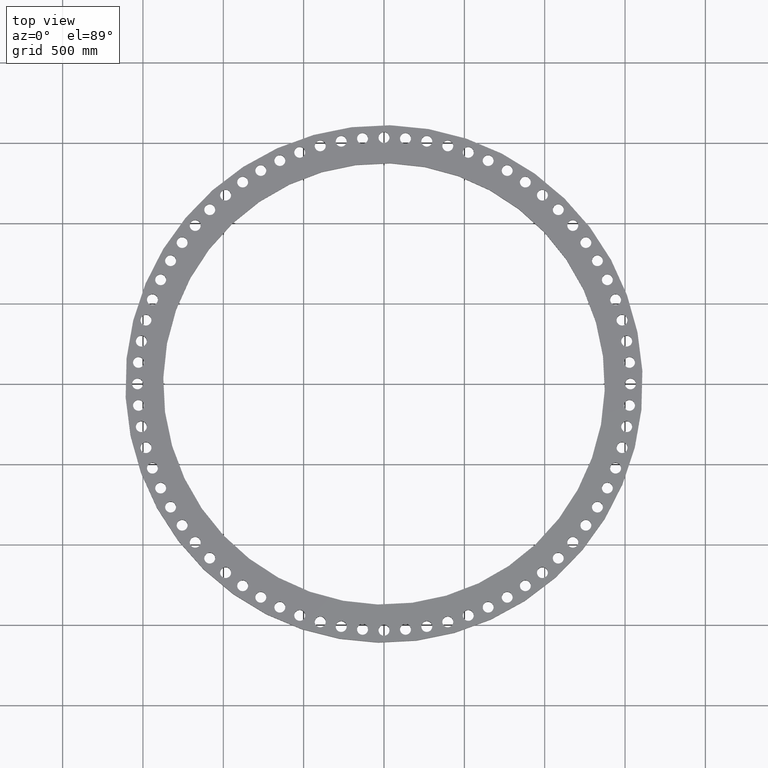
[diagram: clean part render]
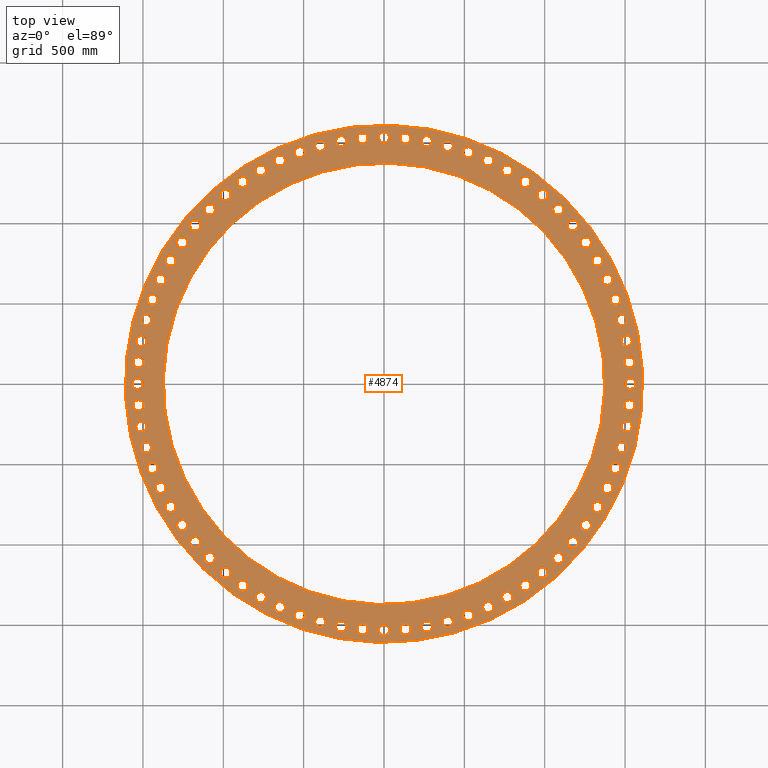
[diagram: same view with one face highlighted and labeled with its STEP entity id]
A machine part, top view. The second image highlights one B-rep face of the part: STEP entity #4874.
In plain terms, the highlighted planar face has unit normal (0, 0, 1).
Its self-contained STEP definition (entity closure, byte-faithful):
#65=AXIS2_PLACEMENT_3D('Circle Axis2P3D',#63,#64,$) ;
#82=AXIS2_PLACEMENT_3D('Circle Axis2P3D',#80,#81,$) ;
#108=AXIS2_PLACEMENT_3D('Circle Axis2P3D',#106,#107,$) ;
#134=AXIS2_PLACEMENT_3D('Circle Axis2P3D',#132,#133,$) ;
#179=AXIS2_PLACEMENT_3D('Circle Axis2P3D',#177,#178,$) ;
#196=AXIS2_PLACEMENT_3D('Circle Axis2P3D',#194,#195,$) ;
#1523=AXIS2_PLACEMENT_3D('Circle Axis2P3D',#1521,#1522,$) ;
#1535=AXIS2_PLACEMENT_3D('Circle Axis2P3D',#1533,#1534,$) ;
#1566=AXIS2_PLACEMENT_3D('Circle Axis2P3D',#1564,#1565,$) ;
#1578=AXIS2_PLACEMENT_3D('Circle Axis2P3D',#1576,#1577,$) ;
#1609=AXIS2_PLACEMENT_3D('Circle Axis2P3D',#1607,#1608,$) ;
#1621=AXIS2_PLACEMENT_3D('Circle Axis2P3D',#1619,#1620,$) ;
#1652=AXIS2_PLACEMENT_3D('Circle Axis2P3D',#1650,#1651,$) ;
#1664=AXIS2_PLACEMENT_3D('Circle Axis2P3D',#1662,#1663,$) ;
#1695=AXIS2_PLACEMENT_3D('Circle Axis2P3D',#1693,#1694,$) ;
#1707=AXIS2_PLACEMENT_3D('Circle Axis2P3D',#1705,#1706,$) ;
#1738=AXIS2_PLACEMENT_3D('Circle Axis2P3D',#1736,#1737,$) ;
#1750=AXIS2_PLACEMENT_3D('Circle Axis2P3D',#1748,#1749,$) ;
#1781=AXIS2_PLACEMENT_3D('Circle Axis2P3D',#1779,#1780,$) ;
#1793=AXIS2_PLACEMENT_3D('Circle Axis2P3D',#1791,#1792,$) ;
#1824=AXIS2_PLACEMENT_3D('Circle Axis2P3D',#1822,#1823,$) ;
#1836=AXIS2_PLACEMENT_3D('Circle Axis2P3D',#1834,#1835,$) ;
#1867=AXIS2_PLACEMENT_3D('Circle Axis2P3D',#1865,#1866,$) ;
#1879=AXIS2_PLACEMENT_3D('Circle Axis2P3D',#1877,#1878,$) ;
#1910=AXIS2_PLACEMENT_3D('Circle Axis2P3D',#1908,#1909,$) ;
#1922=AXIS2_PLACEMENT_3D('Circle Axis2P3D',#1920,#1921,$) ;
#1953=AXIS2_PLACEMENT_3D('Circle Axis2P3D',#1951,#1952,$) ;
#1965=AXIS2_PLACEMENT_3D('Circle Axis2P3D',#1963,#1964,$) ;
#1996=AXIS2_PLACEMENT_3D('Circle Axis2P3D',#1994,#1995,$) ;
#2008=AXIS2_PLACEMENT_3D('Circle Axis2P3D',#2006,#2007,$) ;
#2039=AXIS2_PLACEMENT_3D('Circle Axis2P3D',#2037,#2038,$) ;
#2051=AXIS2_PLACEMENT_3D('Circle Axis2P3D',#2049,#2050,$) ;
#2082=AXIS2_PLACEMENT_3D('Circle Axis2P3D',#2080,#2081,$) ;
#2094=AXIS2_PLACEMENT_3D('Circle Axis2P3D',#2092,#2093,$) ;
#2125=AXIS2_PLACEMENT_3D('Circle Axis2P3D',#2123,#2124,$) ;
#2137=AXIS2_PLACEMENT_3D('Circle Axis2P3D',#2135,#2136,$) ;
#2168=AXIS2_PLACEMENT_3D('Circle Axis2P3D',#2166,#2167,$) ;
#2180=AXIS2_PLACEMENT_3D('Circle Axis2P3D',#2178,#2179,$) ;
#2211=AXIS2_PLACEMENT_3D('Circle Axis2P3D',#2209,#2210,$) ;
#2223=AXIS2_PLACEMENT_3D('Circle Axis2P3D',#2221,#2222,$) ;
#2254=AXIS2_PLACEMENT_3D('Circle Axis2P3D',#2252,#2253,$) ;
#2266=AXIS2_PLACEMENT_3D('Circle Axis2P3D',#2264,#2265,$) ;
#2297=AXIS2_PLACEMENT_3D('Circle Axis2P3D',#2295,#2296,$) ;
#2309=AXIS2_PLACEMENT_3D('Circle Axis2P3D',#2307,#2308,$) ;
#2340=AXIS2_PLACEMENT_3D('Circle Axis2P3D',#2338,#2339,$) ;
#2352=AXIS2_PLACEMENT_3D('Circle Axis2P3D',#2350,#2351,$) ;
#2383=AXIS2_PLACEMENT_3D('Circle Axis2P3D',#2381,#2382,$) ;
#2395=AXIS2_PLACEMENT_3D('Circle Axis2P3D',#2393,#2394,$) ;
#2426=AXIS2_PLACEMENT_3D('Circle Axis2P3D',#2424,#2425,$) ;
#2438=AXIS2_PLACEMENT_3D('Circle Axis2P3D',#2436,#2437,$) ;
#2469=AXIS2_PLACEMENT_3D('Circle Axis2P3D',#2467,#2468,$) ;
#2481=AXIS2_PLACEMENT_3D('Circle Axis2P3D',#2479,#2480,$) ;
#2512=AXIS2_PLACEMENT_3D('Circle Axis2P3D',#2510,#2511,$) ;
#2524=AXIS2_PLACEMENT_3D('Circle Axis2P3D',#2522,#2523,$) ;
#2555=AXIS2_PLACEMENT_3D('Circle Axis2P3D',#2553,#2554,$) ;
#2567=AXIS2_PLACEMENT_3D('Circle Axis2P3D',#2565,#2566,$) ;
#2598=AXIS2_PLACEMENT_3D('Circle Axis2P3D',#2596,#2597,$) ;
#2610=AXIS2_PLACEMENT_3D('Circle Axis2P3D',#2608,#2609,$) ;
#2641=AXIS2_PLACEMENT_3D('Circle Axis2P3D',#2639,#2640,$) ;
#2653=AXIS2_PLACEMENT_3D('Circle Axis2P3D',#2651,#2652,$) ;
#2684=AXIS2_PLACEMENT_3D('Circle Axis2P3D',#2682,#2683,$) ;
#2696=AXIS2_PLACEMENT_3D('Circle Axis2P3D',#2694,#2695,$) ;
#2727=AXIS2_PLACEMENT_3D('Circle Axis2P3D',#2725,#2726,$) ;
#2739=AXIS2_PLACEMENT_3D('Circle Axis2P3D',#2737,#2738,$) ;
#2770=AXIS2_PLACEMENT_3D('Circle Axis2P3D',#2768,#2769,$) ;
#2782=AXIS2_PLACEMENT_3D('Circle Axis2P3D',#2780,#2781,$) ;
#2813=AXIS2_PLACEMENT_3D('Circle Axis2P3D',#2811,#2812,$) ;
#2825=AXIS2_PLACEMENT_3D('Circle Axis2P3D',#2823,#2824,$) ;
#2856=AXIS2_PLACEMENT_3D('Circle Axis2P3D',#2854,#2855,$) ;
#2868=AXIS2_PLACEMENT_3D('Circle Axis2P3D',#2866,#2867,$) ;
#2899=AXIS2_PLACEMENT_3D('Circle Axis2P3D',#2897,#2898,$) ;
#2911=AXIS2_PLACEMENT_3D('Circle Axis2P3D',#2909,#2910,$) ;
#2942=AXIS2_PLACEMENT_3D('Circle Axis2P3D',#2940,#2941,$) ;
#2954=AXIS2_PLACEMENT_3D('Circle Axis2P3D',#2952,#2953,$) ;
#2985=AXIS2_PLACEMENT_3D('Circle Axis2P3D',#2983,#2984,$) ;
#2997=AXIS2_PLACEMENT_3D('Circle Axis2P3D',#2995,#2996,$) ;
#3028=AXIS2_PLACEMENT_3D('Circle Axis2P3D',#3026,#3027,$) ;
#3040=AXIS2_PLACEMENT_3D('Circle Axis2P3D',#3038,#3039,$) ;
#3071=AXIS2_PLACEMENT_3D('Circle Axis2P3D',#3069,#3070,$) ;
#3083=AXIS2_PLACEMENT_3D('Circle Axis2P3D',#3081,#3082,$) ;
#3114=AXIS2_PLACEMENT_3D('Circle Axis2P3D',#3112,#3113,$) ;
#3126=AXIS2_PLACEMENT_3D('Circle Axis2P3D',#3124,#3125,$) ;
#3157=AXIS2_PLACEMENT_3D('Circle Axis2P3D',#3155,#3156,$) ;
#3169=AXIS2_PLACEMENT_3D('Circle Axis2P3D',#3167,#3168,$) ;
#3200=AXIS2_PLACEMENT_3D('Circle Axis2P3D',#3198,#3199,$) ;
#3212=AXIS2_PLACEMENT_3D('Circle Axis2P3D',#3210,#3211,$) ;
#3243=AXIS2_PLACEMENT_3D('Circle Axis2P3D',#3241,#3242,$) ;
#3255=AXIS2_PLACEMENT_3D('Circle Axis2P3D',#3253,#3254,$) ;
#3286=AXIS2_PLACEMENT_3D('Circle Axis2P3D',#3284,#3285,$) ;
#3298=AXIS2_PLACEMENT_3D('Circle Axis2P3D',#3296,#3297,$) ;
#3329=AXIS2_PLACEMENT_3D('Circle Axis2P3D',#3327,#3328,$) ;
#3341=AXIS2_PLACEMENT_3D('Circle Axis2P3D',#3339,#3340,$) ;
#3372=AXIS2_PLACEMENT_3D('Circle Axis2P3D',#3370,#3371,$) ;
#3384=AXIS2_PLACEMENT_3D('Circle Axis2P3D',#3382,#3383,$) ;
#3415=AXIS2_PLACEMENT_3D('Circle Axis2P3D',#3413,#3414,$) ;
#3427=AXIS2_PLACEMENT_3D('Circle Axis2P3D',#3425,#3426,$) ;
#3458=AXIS2_PLACEMENT_3D('Circle Axis2P3D',#3456,#3457,$) ;
#3470=AXIS2_PLACEMENT_3D('Circle Axis2P3D',#3468,#3469,$) ;
#3501=AXIS2_PLACEMENT_3D('Circle Axis2P3D',#3499,#3500,$) ;
#3513=AXIS2_PLACEMENT_3D('Circle Axis2P3D',#3511,#3512,$) ;
#3544=AXIS2_PLACEMENT_3D('Circle Axis2P3D',#3542,#3543,$) ;
#3556=AXIS2_PLACEMENT_3D('Circle Axis2P3D',#3554,#3555,$) ;
#3587=AXIS2_PLACEMENT_3D('Circle Axis2P3D',#3585,#3586,$) ;
#3599=AXIS2_PLACEMENT_3D('Circle Axis2P3D',#3597,#3598,$) ;
#3630=AXIS2_PLACEMENT_3D('Circle Axis2P3D',#3628,#3629,$) ;
#3642=AXIS2_PLACEMENT_3D('Circle Axis2P3D',#3640,#3641,$) ;
#3673=AXIS2_PLACEMENT_3D('Circle Axis2P3D',#3671,#3672,$) ;
#3685=AXIS2_PLACEMENT_3D('Circle Axis2P3D',#3683,#3684,$) ;
#3716=AXIS2_PLACEMENT_3D('Circle Axis2P3D',#3714,#3715,$) ;
#3728=AXIS2_PLACEMENT_3D('Circle Axis2P3D',#3726,#3727,$) ;
#3759=AXIS2_PLACEMENT_3D('Circle Axis2P3D',#3757,#3758,$) ;
#3771=AXIS2_PLACEMENT_3D('Circle Axis2P3D',#3769,#3770,$) ;
#3802=AXIS2_PLACEMENT_3D('Circle Axis2P3D',#3800,#3801,$) ;
#3814=AXIS2_PLACEMENT_3D('Circle Axis2P3D',#3812,#3813,$) ;
#3845=AXIS2_PLACEMENT_3D('Circle Axis2P3D',#3843,#3844,$) ;
#3857=AXIS2_PLACEMENT_3D('Circle Axis2P3D',#3855,#3856,$) ;
#3888=AXIS2_PLACEMENT_3D('Circle Axis2P3D',#3886,#3887,$) ;
#3900=AXIS2_PLACEMENT_3D('Circle Axis2P3D',#3898,#3899,$) ;
#3931=AXIS2_PLACEMENT_3D('Circle Axis2P3D',#3929,#3930,$) ;
#3943=AXIS2_PLACEMENT_3D('Circle Axis2P3D',#3941,#3942,$) ;
#3974=AXIS2_PLACEMENT_3D('Circle Axis2P3D',#3972,#3973,$) ;
#3986=AXIS2_PLACEMENT_3D('Circle Axis2P3D',#3984,#3985,$) ;
#4017=AXIS2_PLACEMENT_3D('Circle Axis2P3D',#4015,#4016,$) ;
#4029=AXIS2_PLACEMENT_3D('Circle Axis2P3D',#4027,#4028,$) ;
#4060=AXIS2_PLACEMENT_3D('Circle Axis2P3D',#4058,#4059,$) ;
#4072=AXIS2_PLACEMENT_3D('Circle Axis2P3D',#4070,#4071,$) ;
#4103=AXIS2_PLACEMENT_3D('Circle Axis2P3D',#4101,#4102,$) ;
#4115=AXIS2_PLACEMENT_3D('Circle Axis2P3D',#4113,#4114,$) ;
#4146=AXIS2_PLACEMENT_3D('Circle Axis2P3D',#4144,#4145,$) ;
#4158=AXIS2_PLACEMENT_3D('Circle Axis2P3D',#4156,#4157,$) ;
#4189=AXIS2_PLACEMENT_3D('Circle Axis2P3D',#4187,#4188,$) ;
#4201=AXIS2_PLACEMENT_3D('Circle Axis2P3D',#4199,#4200,$) ;
#4232=AXIS2_PLACEMENT_3D('Circle Axis2P3D',#4230,#4231,$) ;
#4244=AXIS2_PLACEMENT_3D('Circle Axis2P3D',#4242,#4243,$) ;
#4275=AXIS2_PLACEMENT_3D('Circle Axis2P3D',#4273,#4274,$) ;
#4287=AXIS2_PLACEMENT_3D('Circle Axis2P3D',#4285,#4286,$) ;
#4318=AXIS2_PLACEMENT_3D('Circle Axis2P3D',#4316,#4317,$) ;
#4330=AXIS2_PLACEMENT_3D('Circle Axis2P3D',#4328,#4329,$) ;
#4361=AXIS2_PLACEMENT_3D('Circle Axis2P3D',#4359,#4360,$) ;
#4373=AXIS2_PLACEMENT_3D('Circle Axis2P3D',#4371,#4372,$) ;
#4404=AXIS2_PLACEMENT_3D('Circle Axis2P3D',#4402,#4403,$) ;
#4416=AXIS2_PLACEMENT_3D('Circle Axis2P3D',#4414,#4415,$) ;
#4447=AXIS2_PLACEMENT_3D('Circle Axis2P3D',#4445,#4446,$) ;
#4459=AXIS2_PLACEMENT_3D('Circle Axis2P3D',#4457,#4458,$) ;
#4490=AXIS2_PLACEMENT_3D('Circle Axis2P3D',#4488,#4489,$) ;
#4502=AXIS2_PLACEMENT_3D('Circle Axis2P3D',#4500,#4501,$) ;
#4533=AXIS2_PLACEMENT_3D('Circle Axis2P3D',#4531,#4532,$) ;
#4545=AXIS2_PLACEMENT_3D('Circle Axis2P3D',#4543,#4544,$) ;
#4558=AXIS2_PLACEMENT_3D('Plane Axis2P3D',#4555,#4556,#4557) ;
#4858=AXIS2_PLACEMENT_3D('Circle Axis2P3D',#4856,#4857,$) ;
#4867=AXIS2_PLACEMENT_3D('Circle Axis2P3D',#4865,#4866,$) ;
#46=CARTESIAN_POINT('Vertex',(59.1955290371,0.644347923887,5.50000000002)) ;
#60=CARTESIAN_POINT('Vertex',(61.5544709634,-0.644347923887,5.50000000002)) ;
#63=CARTESIAN_POINT('Axis2P3D Location',(60.3750000002,0.,5.50000000002)) ;
#80=CARTESIAN_POINT('Axis2P3D Location',(60.3750000002,0.,5.50000000002)) ;
#103=CARTESIAN_POINT('Vertex',(55.61679486,30.3835935092,5.50000000002)) ;
#106=CARTESIAN_POINT('Axis2P3D Location',(0.,0.,5.50000000002)) ;
#110=CARTESIAN_POINT('Vertex',(-55.61679486,-30.3835935092,5.50000000002)) ;
#132=CARTESIAN_POINT('Axis2P3D Location',(0.,0.,5.50000000002)) ;
#160=CARTESIAN_POINT('Vertex',(-47.4728286856,25.9345245109,5.50000000002)) ;
#174=CARTESIAN_POINT('Vertex',(47.4728286856,-25.9345245109,5.50000000002)) ;
#177=CARTESIAN_POINT('Axis2P3D Location',(-6.64385432059E-016,-2.09805925913E-016,5.50000000002)) ;
#194=CARTESIAN_POINT('Axis2P3D Location',(-6.64385432059E-016,-2.09805925913E-016,5.50000000002)) ;
#1511=CARTESIAN_POINT('Vertex',(58.9141135556,5.80112628607,5.50000000002)) ;
#1518=CARTESIAN_POINT('Vertex',(61.3763962395,4.72292965075,5.50000000002)) ;
#1521=CARTESIAN_POINT('Axis2P3D Location',(60.1452548975,5.26202796841,5.50000000002)) ;
#1533=CARTESIAN_POINT('Axis2P3D Location',(60.1452548975,5.26202796841,5.50000000002)) ;
#1554=CARTESIAN_POINT('Vertex',(58.1843260966,10.9137545744,5.50000000002)) ;
#1561=CARTESIAN_POINT('Vertex',(60.7312100801,10.054262879,5.50000000002)) ;
#1564=CARTESIAN_POINT('Axis2P3D Location',(59.4577680883,10.4840087267,5.50000000002)) ;
#1576=CARTESIAN_POINT('Axis2P3D Location',(59.4577680883,10.4840087267,5.50000000002)) ;
#1597=CARTESIAN_POINT('Vertex',(57.0117207834,15.9433226005,5.50000000002)) ;
#1604=CARTESIAN_POINT('Vertex',(59.6238227415,15.3090770957,5.50000000002)) ;
#1607=CARTESIAN_POINT('Axis2P3D Location',(58.3177717624,15.6261998481,5.50000000002)) ;
#1619=CARTESIAN_POINT('Axis2P3D Location',(58.3177717624,15.6261998481,5.50000000002)) ;
#1640=CARTESIAN_POINT('Vertex',(55.4052218504,20.8515523148,5.50000000002)) ;
#1647=CARTESIAN_POINT('Vertex',(58.06266211,20.447379992,5.50000000002)) ;
#1650=CARTESIAN_POINT('Axis2P3D Location',(56.7339419802,20.6494661534,5.50000000002)) ;
#1662=CARTESIAN_POINT('Axis2P3D Location',(56.7339419802,20.6494661534,5.50000000002)) ;
#1683=CARTESIAN_POINT('Vertex',(53.3770557245,25.6010891254,5.50000000002)) ;
#1690=CARTESIAN_POINT('Vertex',(56.0596095606,25.43006598,5.50000000002)) ;
#1693=CARTESIAN_POINT('Axis2P3D Location',(54.7183326426,25.5155775527,5.50000000002)) ;
#1705=CARTESIAN_POINT('Axis2P3D Location',(54.7183326426,25.5155775527,5.50000000002)) ;
#1726=CARTESIAN_POINT('Vertex',(50.9426579746,30.1557861895,5.50000000002)) ;
#1733=CARTESIAN_POINT('Vertex',(53.6299095328,30.2192138108,5.50000000002)) ;
#1736=CARTESIAN_POINT('Axis2P3D Location',(52.2862837537,30.1875000001,5.50000000002)) ;
#1748=CARTESIAN_POINT('Axis2P3D Location',(52.2862837537,30.1875000001,5.50000000002)) ;
#1769=CARTESIAN_POINT('Vertex',(48.1205558375,34.4809795121,5.50000000002)) ;
#1776=CARTESIAN_POINT('Vertex',(50.7920535108,34.7783751776,5.50000000002)) ;
#1779=CARTESIAN_POINT('Axis2P3D Location',(49.4563046741,34.6296773448,5.50000000002)) ;
#1791=CARTESIAN_POINT('Axis2P3D Location',(49.4563046741,34.6296773448,5.50000000002)) ;
#1812=CARTESIAN_POINT('Vertex',(44.9322272145,38.5437517604,5.50000000002)) ;
#1819=CARTESIAN_POINT('Vertex',(47.5676392925,39.0728521096,5.50000000002)) ;
#1822=CARTESIAN_POINT('Axis2P3D Location',(46.2499332535,38.808301935,5.50000000002)) ;
#1834=CARTESIAN_POINT('Axis2P3D Location',(46.2499332535,38.808301935,5.50000000002)) ;
#1855=CARTESIAN_POINT('Vertex',(41.4019372116,42.3131827845,5.50000000002)) ;
#1862=CARTESIAN_POINT('Vertex',(43.981206617,43.0699610442,5.50000000002)) ;
#1865=CARTESIAN_POINT('Axis2P3D Location',(42.6915719143,42.6915719143,5.50000000002)) ;
#1877=CARTESIAN_POINT('Axis2P3D Location',(42.6915719143,42.6915719143,5.50000000002)) ;
#1898=CARTESIAN_POINT('Vertex',(37.5565534673,45.7605849381,5.50000000002)) ;
#1905=CARTESIAN_POINT('Vertex',(40.0600504026,46.7392815689,5.50000000002)) ;
#1908=CARTESIAN_POINT('Axis2P3D Location',(38.808301935,46.2499332535,5.50000000002)) ;
#1920=CARTESIAN_POINT('Axis2P3D Location',(38.808301935,46.2499332535,5.50000000002)) ;
#1941=CARTESIAN_POINT('Vertex',(33.4253416739,48.8597214094,5.50000000002)) ;
#1948=CARTESIAN_POINT('Vertex',(35.8340130158,50.0528879389,5.50000000002)) ;
#1951=CARTESIAN_POINT('Axis2P3D Location',(34.6296773448,49.4563046741,5.50000000002)) ;
#1963=CARTESIAN_POINT('Axis2P3D Location',(34.6296773448,49.4563046741,5.50000000002)) ;
#1984=CARTESIAN_POINT('Vertex',(29.0397428476,51.5870058985,5.50000000002)) ;
#1991=CARTESIAN_POINT('Vertex',(31.3352571527,52.9855616089,5.50000000002)) ;
#1994=CARTESIAN_POINT('Axis2P3D Location',(30.1875000001,52.2862837537,5.50000000002)) ;
#2006=CARTESIAN_POINT('Axis2P3D Location',(30.1875000001,52.2862837537,5.50000000002)) ;
#2027=CARTESIAN_POINT('Vertex',(24.4331340435,53.9216821236,5.50000000002)) ;
#2034=CARTESIAN_POINT('Vertex',(26.5980210619,55.5149831615,5.50000000002)) ;
#2037=CARTESIAN_POINT('Axis2P3D Location',(25.5155775527,54.7183326426,5.50000000002)) ;
#2049=CARTESIAN_POINT('Axis2P3D Location',(25.5155775527,54.7183326426,5.50000000002)) ;
#2070=CARTESIAN_POINT('Vertex',(19.6405743362,55.8459817889,5.50000000002)) ;
#2077=CARTESIAN_POINT('Vertex',(21.6583579705,57.6219021714,5.50000000002)) ;
#2080=CARTESIAN_POINT('Axis2P3D Location',(20.6494661534,56.7339419802,5.50000000002)) ;
#2092=CARTESIAN_POINT('Axis2P3D Location',(20.6494661534,56.7339419802,5.50000000002)) ;
#2113=CARTESIAN_POINT('Vertex',(14.6985379989,57.3452598121,5.50000000002)) ;
#2120=CARTESIAN_POINT('Vertex',(16.5538616973,59.2902837128,5.50000000002)) ;
#2123=CARTESIAN_POINT('Axis2P3D Location',(15.6261998481,58.3177717624,5.50000000002)) ;
#2135=CARTESIAN_POINT('Axis2P3D Location',(15.6261998481,58.3177717624,5.50000000002)) ;
#2156=CARTESIAN_POINT('Vertex',(9.64463691223,58.4081057821,5.50000000002)) ;
#2163=CARTESIAN_POINT('Vertex',(11.3233805411,60.5074303946,5.50000000002)) ;
#2166=CARTESIAN_POINT('Axis2P3D Location',(10.4840087267,59.4577680883,5.50000000002)) ;
#2178=CARTESIAN_POINT('Axis2P3D Location',(10.4840087267,59.4577680883,5.50000000002)) ;
#2199=CARTESIAN_POINT('Vertex',(4.51733431506,59.0264307993,5.50000000002)) ;
#2206=CARTESIAN_POINT('Vertex',(6.00672162176,61.2640789957,5.50000000002)) ;
#2209=CARTESIAN_POINT('Axis2P3D Location',(5.26202796841,60.1452548975,5.50000000002)) ;
#2221=CARTESIAN_POINT('Axis2P3D Location',(5.26202796841,60.1452548975,5.50000000002)) ;
#2242=CARTESIAN_POINT('Vertex',(-0.644347923887,59.1955290371,5.50000000002)) ;
#2249=CARTESIAN_POINT('Vertex',(0.644347923887,61.5544709634,5.50000000002)) ;
#2252=CARTESIAN_POINT('Axis2P3D Location',(-5.2548169807E-015,60.3750000002,5.50000000002)) ;
#2264=CARTESIAN_POINT('Axis2P3D Location',(-5.2548169807E-015,60.3750000002,5.50000000002)) ;
#2285=CARTESIAN_POINT('Vertex',(-5.80112628607,58.9141135556,5.50000000002)) ;
#2292=CARTESIAN_POINT('Vertex',(-4.72292965075,61.3763962395,5.50000000002)) ;
#2295=CARTESIAN_POINT('Axis2P3D Location',(-5.26202796841,60.1452548975,5.50000000002)) ;
#2307=CARTESIAN_POINT('Axis2P3D Location',(-5.26202796841,60.1452548975,5.50000000002)) ;
#2328=CARTESIAN_POINT('Vertex',(-10.9137545744,58.1843260966,5.50000000002)) ;
#2335=CARTESIAN_POINT('Vertex',(-10.054262879,60.7312100801,5.50000000002)) ;
#2338=CARTESIAN_POINT('Axis2P3D Location',(-10.4840087267,59.4577680883,5.50000000002)) ;
#2350=CARTESIAN_POINT('Axis2P3D Location',(-10.4840087267,59.4577680883,5.50000000002)) ;
#2371=CARTESIAN_POINT('Vertex',(-15.9433226005,57.0117207834,5.50000000002)) ;
#2378=CARTESIAN_POINT('Vertex',(-15.3090770957,59.6238227415,5.50000000002)) ;
#2381=CARTESIAN_POINT('Axis2P3D Location',(-15.6261998481,58.3177717624,5.50000000002)) ;
#2393=CARTESIAN_POINT('Axis2P3D Location',(-15.6261998481,58.3177717624,5.50000000002)) ;
#2414=CARTESIAN_POINT('Vertex',(-20.8515523148,55.4052218504,5.50000000002)) ;
#2421=CARTESIAN_POINT('Vertex',(-20.447379992,58.06266211,5.50000000002)) ;
#2424=CARTESIAN_POINT('Axis2P3D Location',(-20.6494661534,56.7339419802,5.50000000002)) ;
#2436=CARTESIAN_POINT('Axis2P3D Location',(-20.6494661534,56.7339419802,5.50000000002)) ;
#2457=CARTESIAN_POINT('Vertex',(-25.6010891254,53.3770557245,5.50000000002)) ;
#2464=CARTESIAN_POINT('Vertex',(-25.43006598,56.0596095606,5.50000000002)) ;
#2467=CARTESIAN_POINT('Axis2P3D Location',(-25.5155775527,54.7183326426,5.50000000002)) ;
#2479=CARTESIAN_POINT('Axis2P3D Location',(-25.5155775527,54.7183326426,5.50000000002)) ;
#2500=CARTESIAN_POINT('Vertex',(-30.1557861895,50.9426579746,5.50000000002)) ;
#2507=CARTESIAN_POINT('Vertex',(-30.2192138108,53.6299095328,5.50000000002)) ;
#2510=CARTESIAN_POINT('Axis2P3D Location',(-30.1875000001,52.2862837537,5.50000000002)) ;
#2522=CARTESIAN_POINT('Axis2P3D Location',(-30.1875000001,52.2862837537,5.50000000002)) ;
#2543=CARTESIAN_POINT('Vertex',(-34.4809795121,48.1205558375,5.50000000002)) ;
#2550=CARTESIAN_POINT('Vertex',(-34.7783751776,50.7920535108,5.50000000002)) ;
#2553=CARTESIAN_POINT('Axis2P3D Location',(-34.6296773448,49.4563046741,5.50000000002)) ;
#2565=CARTESIAN_POINT('Axis2P3D Location',(-34.6296773448,49.4563046741,5.50000000002)) ;
#2586=CARTESIAN_POINT('Vertex',(-38.5437517604,44.9322272145,5.50000000002)) ;
#2593=CARTESIAN_POINT('Vertex',(-39.0728521096,47.5676392925,5.50000000002)) ;
#2596=CARTESIAN_POINT('Axis2P3D Location',(-38.808301935,46.2499332535,5.50000000002)) ;
#2608=CARTESIAN_POINT('Axis2P3D Location',(-38.808301935,46.2499332535,5.50000000002)) ;
#2629=CARTESIAN_POINT('Vertex',(-42.3131827845,41.4019372116,5.50000000002)) ;
#2636=CARTESIAN_POINT('Vertex',(-43.0699610442,43.981206617,5.50000000002)) ;
#2639=CARTESIAN_POINT('Axis2P3D Location',(-42.6915719143,42.6915719143,5.50000000002)) ;
#2651=CARTESIAN_POINT('Axis2P3D Location',(-42.6915719143,42.6915719143,5.50000000002)) ;
#2672=CARTESIAN_POINT('Vertex',(-45.7605849381,37.5565534673,5.50000000002)) ;
#2679=CARTESIAN_POINT('Vertex',(-46.7392815689,40.0600504026,5.50000000002)) ;
#2682=CARTESIAN_POINT('Axis2P3D Location',(-46.2499332535,38.808301935,5.50000000002)) ;
#2694=CARTESIAN_POINT('Axis2P3D Location',(-46.2499332535,38.808301935,5.50000000002)) ;
#2715=CARTESIAN_POINT('Vertex',(-48.8597214094,33.4253416739,5.50000000002)) ;
#2722=CARTESIAN_POINT('Vertex',(-50.0528879389,35.8340130158,5.50000000002)) ;
#2725=CARTESIAN_POINT('Axis2P3D Location',(-49.4563046741,34.6296773448,5.50000000002)) ;
#2737=CARTESIAN_POINT('Axis2P3D Location',(-49.4563046741,34.6296773448,5.50000000002)) ;
#2758=CARTESIAN_POINT('Vertex',(-51.5870058985,29.0397428476,5.50000000002)) ;
#2765=CARTESIAN_POINT('Vertex',(-52.9855616089,31.3352571527,5.50000000002)) ;
#2768=CARTESIAN_POINT('Axis2P3D Location',(-52.2862837537,30.1875000001,5.50000000002)) ;
#2780=CARTESIAN_POINT('Axis2P3D Location',(-52.2862837537,30.1875000001,5.50000000002)) ;
#2801=CARTESIAN_POINT('Vertex',(-53.9216821236,24.4331340435,5.50000000002)) ;
#2808=CARTESIAN_POINT('Vertex',(-55.5149831615,26.5980210619,5.50000000002)) ;
#2811=CARTESIAN_POINT('Axis2P3D Location',(-54.7183326426,25.5155775527,5.50000000002)) ;
#2823=CARTESIAN_POINT('Axis2P3D Location',(-54.7183326426,25.5155775527,5.50000000002)) ;
#2844=CARTESIAN_POINT('Vertex',(-55.8459817889,19.6405743362,5.50000000002)) ;
#2851=CARTESIAN_POINT('Vertex',(-57.6219021714,21.6583579705,5.50000000002)) ;
#2854=CARTESIAN_POINT('Axis2P3D Location',(-56.7339419802,20.6494661534,5.50000000002)) ;
#2866=CARTESIAN_POINT('Axis2P3D Location',(-56.7339419802,20.6494661534,5.50000000002)) ;
#2887=CARTESIAN_POINT('Vertex',(-57.3452598121,14.6985379989,5.50000000002)) ;
#2894=CARTESIAN_POINT('Vertex',(-59.2902837128,16.5538616973,5.50000000002)) ;
#2897=CARTESIAN_POINT('Axis2P3D Location',(-58.3177717624,15.6261998481,5.50000000002)) ;
#2909=CARTESIAN_POINT('Axis2P3D Location',(-58.3177717624,15.6261998481,5.50000000002)) ;
#2930=CARTESIAN_POINT('Vertex',(-58.4081057821,9.64463691223,5.50000000002)) ;
#2937=CARTESIAN_POINT('Vertex',(-60.5074303946,11.3233805411,5.50000000002)) ;
#2940=CARTESIAN_POINT('Axis2P3D Location',(-59.4577680883,10.4840087267,5.50000000002)) ;
#2952=CARTESIAN_POINT('Axis2P3D Location',(-59.4577680883,10.4840087267,5.50000000002)) ;
#2973=CARTESIAN_POINT('Vertex',(-59.0264307993,4.51733431506,5.50000000002)) ;
#2980=CARTESIAN_POINT('Vertex',(-61.2640789957,6.00672162176,5.50000000002)) ;
#2983=CARTESIAN_POINT('Axis2P3D Location',(-60.1452548975,5.26202796841,5.50000000002)) ;
#2995=CARTESIAN_POINT('Axis2P3D Location',(-60.1452548975,5.26202796841,5.50000000002)) ;
#3016=CARTESIAN_POINT('Vertex',(-59.1955290371,-0.644347923887,5.50000000002)) ;
#3023=CARTESIAN_POINT('Vertex',(-61.5544709634,0.644347923887,5.50000000002)) ;
#3026=CARTESIAN_POINT('Axis2P3D Location',(-60.3750000002,7.39380504988E-015,5.50000000002)) ;
#3038=CARTESIAN_POINT('Axis2P3D Location',(-60.3750000002,7.39380504988E-015,5.50000000002)) ;
#3059=CARTESIAN_POINT('Vertex',(-58.9141135556,-5.80112628607,5.50000000002)) ;
#3066=CARTESIAN_POINT('Vertex',(-61.3763962395,-4.72292965075,5.50000000002)) ;
#3069=CARTESIAN_POINT('Axis2P3D Location',(-60.1452548975,-5.26202796841,5.50000000002)) ;
#3081=CARTESIAN_POINT('Axis2P3D Location',(-60.1452548975,-5.26202796841,5.50000000002)) ;
#3102=CARTESIAN_POINT('Vertex',(-58.1843260966,-10.9137545744,5.50000000002)) ;
#3109=CARTESIAN_POINT('Vertex',(-60.7312100801,-10.054262879,5.50000000002)) ;
#3112=CARTESIAN_POINT('Axis2P3D Location',(-59.4577680883,-10.4840087267,5.50000000002)) ;
#3124=CARTESIAN_POINT('Axis2P3D Location',(-59.4577680883,-10.4840087267,5.50000000002)) ;
#3145=CARTESIAN_POINT('Vertex',(-57.0117207834,-15.9433226005,5.50000000002)) ;
#3152=CARTESIAN_POINT('Vertex',(-59.6238227415,-15.3090770957,5.50000000002)) ;
#3155=CARTESIAN_POINT('Axis2P3D Location',(-58.3177717624,-15.6261998481,5.50000000002)) ;
#3167=CARTESIAN_POINT('Axis2P3D Location',(-58.3177717624,-15.6261998481,5.50000000002)) ;
#3188=CARTESIAN_POINT('Vertex',(-55.4052218504,-20.8515523148,5.50000000002)) ;
#3195=CARTESIAN_POINT('Vertex',(-58.06266211,-20.447379992,5.50000000002)) ;
#3198=CARTESIAN_POINT('Axis2P3D Location',(-56.7339419802,-20.6494661534,5.50000000002)) ;
#3210=CARTESIAN_POINT('Axis2P3D Location',(-56.7339419802,-20.6494661534,5.50000000002)) ;
#3231=CARTESIAN_POINT('Vertex',(-53.3770557245,-25.6010891254,5.50000000002)) ;
#3238=CARTESIAN_POINT('Vertex',(-56.0596095606,-25.43006598,5.50000000002)) ;
#3241=CARTESIAN_POINT('Axis2P3D Location',(-54.7183326426,-25.5155775527,5.50000000002)) ;
#3253=CARTESIAN_POINT('Axis2P3D Location',(-54.7183326426,-25.5155775527,5.50000000002)) ;
#3274=CARTESIAN_POINT('Vertex',(-50.9426579746,-30.1557861895,5.50000000002)) ;
#3281=CARTESIAN_POINT('Vertex',(-53.6299095328,-30.2192138108,5.50000000002)) ;
#3284=CARTESIAN_POINT('Axis2P3D Location',(-52.2862837537,-30.1875000001,5.50000000002)) ;
#3296=CARTESIAN_POINT('Axis2P3D Location',(-52.2862837537,-30.1875000001,5.50000000002)) ;
#3317=CARTESIAN_POINT('Vertex',(-48.1205558375,-34.4809795121,5.50000000002)) ;
#3324=CARTESIAN_POINT('Vertex',(-50.7920535108,-34.7783751776,5.50000000002)) ;
#3327=CARTESIAN_POINT('Axis2P3D Location',(-49.4563046741,-34.6296773448,5.50000000002)) ;
#3339=CARTESIAN_POINT('Axis2P3D Location',(-49.4563046741,-34.6296773448,5.50000000002)) ;
#3360=CARTESIAN_POINT('Vertex',(-44.9322272145,-38.5437517604,5.50000000002)) ;
#3367=CARTESIAN_POINT('Vertex',(-47.5676392925,-39.0728521096,5.50000000002)) ;
#3370=CARTESIAN_POINT('Axis2P3D Location',(-46.2499332535,-38.808301935,5.50000000002)) ;
#3382=CARTESIAN_POINT('Axis2P3D Location',(-46.2499332535,-38.808301935,5.50000000002)) ;
#3403=CARTESIAN_POINT('Vertex',(-41.4019372116,-42.3131827845,5.50000000002)) ;
#3410=CARTESIAN_POINT('Vertex',(-43.981206617,-43.0699610442,5.50000000002)) ;
#3413=CARTESIAN_POINT('Axis2P3D Location',(-42.6915719143,-42.6915719143,5.50000000002)) ;
#3425=CARTESIAN_POINT('Axis2P3D Location',(-42.6915719143,-42.6915719143,5.50000000002)) ;
#3446=CARTESIAN_POINT('Vertex',(-37.5565534673,-45.7605849381,5.50000000002)) ;
#3453=CARTESIAN_POINT('Vertex',(-40.0600504026,-46.7392815689,5.50000000002)) ;
#3456=CARTESIAN_POINT('Axis2P3D Location',(-38.808301935,-46.2499332535,5.50000000002)) ;
#3468=CARTESIAN_POINT('Axis2P3D Location',(-38.808301935,-46.2499332535,5.50000000002)) ;
#3489=CARTESIAN_POINT('Vertex',(-33.4253416739,-48.8597214094,5.50000000002)) ;
#3496=CARTESIAN_POINT('Vertex',(-35.8340130158,-50.0528879389,5.50000000002)) ;
#3499=CARTESIAN_POINT('Axis2P3D Location',(-34.6296773448,-49.4563046741,5.50000000002)) ;
#3511=CARTESIAN_POINT('Axis2P3D Location',(-34.6296773448,-49.4563046741,5.50000000002)) ;
#3532=CARTESIAN_POINT('Vertex',(-29.0397428476,-51.5870058985,5.50000000002)) ;
#3539=CARTESIAN_POINT('Vertex',(-31.3352571527,-52.9855616089,5.50000000002)) ;
#3542=CARTESIAN_POINT('Axis2P3D Location',(-30.1875000001,-52.2862837537,5.50000000002)) ;
#3554=CARTESIAN_POINT('Axis2P3D Location',(-30.1875000001,-52.2862837537,5.50000000002)) ;
#3575=CARTESIAN_POINT('Vertex',(-24.4331340435,-53.9216821236,5.50000000002)) ;
#3582=CARTESIAN_POINT('Vertex',(-26.5980210619,-55.5149831615,5.50000000002)) ;
#3585=CARTESIAN_POINT('Axis2P3D Location',(-25.5155775527,-54.7183326426,5.50000000002)) ;
#3597=CARTESIAN_POINT('Axis2P3D Location',(-25.5155775527,-54.7183326426,5.50000000002)) ;
#3618=CARTESIAN_POINT('Vertex',(-19.6405743362,-55.8459817889,5.50000000002)) ;
#3625=CARTESIAN_POINT('Vertex',(-21.6583579705,-57.6219021714,5.50000000002)) ;
#3628=CARTESIAN_POINT('Axis2P3D Location',(-20.6494661534,-56.7339419802,5.50000000002)) ;
#3640=CARTESIAN_POINT('Axis2P3D Location',(-20.6494661534,-56.7339419802,5.50000000002)) ;
#3661=CARTESIAN_POINT('Vertex',(-14.6985379989,-57.3452598121,5.50000000002)) ;
#3668=CARTESIAN_POINT('Vertex',(-16.5538616973,-59.2902837128,5.50000000002)) ;
#3671=CARTESIAN_POINT('Axis2P3D Location',(-15.6261998481,-58.3177717624,5.50000000002)) ;
#3683=CARTESIAN_POINT('Axis2P3D Location',(-15.6261998481,-58.3177717624,5.50000000002)) ;
#3704=CARTESIAN_POINT('Vertex',(-9.64463691223,-58.4081057821,5.50000000002)) ;
#3711=CARTESIAN_POINT('Vertex',(-11.3233805411,-60.5074303946,5.50000000002)) ;
#3714=CARTESIAN_POINT('Axis2P3D Location',(-10.4840087267,-59.4577680883,5.50000000002)) ;
#3726=CARTESIAN_POINT('Axis2P3D Location',(-10.4840087267,-59.4577680883,5.50000000002)) ;
#3747=CARTESIAN_POINT('Vertex',(-4.51733431506,-59.0264307993,5.50000000002)) ;
#3754=CARTESIAN_POINT('Vertex',(-6.00672162176,-61.2640789957,5.50000000002)) ;
#3757=CARTESIAN_POINT('Axis2P3D Location',(-5.26202796841,-60.1452548975,5.50000000002)) ;
#3769=CARTESIAN_POINT('Axis2P3D Location',(-5.26202796841,-60.1452548975,5.50000000002)) ;
#3790=CARTESIAN_POINT('Vertex',(0.644347923887,-59.1955290371,5.50000000002)) ;
#3797=CARTESIAN_POINT('Vertex',(-0.644347923887,-61.5544709634,5.50000000002)) ;
#3800=CARTESIAN_POINT('Axis2P3D Location',(-1.10907075748E-014,-60.3750000002,5.50000000002)) ;
#3812=CARTESIAN_POINT('Axis2P3D Location',(-1.10907075748E-014,-60.3750000002,5.50000000002)) ;
#3833=CARTESIAN_POINT('Vertex',(5.80112628607,-58.9141135556,5.50000000002)) ;
#3840=CARTESIAN_POINT('Vertex',(4.72292965075,-61.3763962395,5.50000000002)) ;
#3843=CARTESIAN_POINT('Axis2P3D Location',(5.26202796841,-60.1452548975,5.50000000002)) ;
#3855=CARTESIAN_POINT('Axis2P3D Location',(5.26202796841,-60.1452548975,5.50000000002)) ;
#3876=CARTESIAN_POINT('Vertex',(10.9137545744,-58.1843260966,5.50000000002)) ;
#3883=CARTESIAN_POINT('Vertex',(10.054262879,-60.7312100801,5.50000000002)) ;
#3886=CARTESIAN_POINT('Axis2P3D Location',(10.4840087267,-59.4577680883,5.50000000002)) ;
#3898=CARTESIAN_POINT('Axis2P3D Location',(10.4840087267,-59.4577680883,5.50000000002)) ;
#3919=CARTESIAN_POINT('Vertex',(15.9433226005,-57.0117207834,5.50000000002)) ;
#3926=CARTESIAN_POINT('Vertex',(15.3090770957,-59.6238227415,5.50000000002)) ;
#3929=CARTESIAN_POINT('Axis2P3D Location',(15.6261998481,-58.3177717624,5.50000000002)) ;
#3941=CARTESIAN_POINT('Axis2P3D Location',(15.6261998481,-58.3177717624,5.50000000002)) ;
#3962=CARTESIAN_POINT('Vertex',(20.8515523148,-55.4052218504,5.50000000002)) ;
#3969=CARTESIAN_POINT('Vertex',(20.447379992,-58.06266211,5.50000000002)) ;
#3972=CARTESIAN_POINT('Axis2P3D Location',(20.6494661534,-56.7339419802,5.50000000002)) ;
#3984=CARTESIAN_POINT('Axis2P3D Location',(20.6494661534,-56.7339419802,5.50000000002)) ;
#4005=CARTESIAN_POINT('Vertex',(25.6010891254,-53.3770557245,5.50000000002)) ;
#4012=CARTESIAN_POINT('Vertex',(25.43006598,-56.0596095606,5.50000000002)) ;
#4015=CARTESIAN_POINT('Axis2P3D Location',(25.5155775527,-54.7183326426,5.50000000002)) ;
#4027=CARTESIAN_POINT('Axis2P3D Location',(25.5155775527,-54.7183326426,5.50000000002)) ;
#4048=CARTESIAN_POINT('Vertex',(30.1557861895,-50.9426579746,5.50000000002)) ;
#4055=CARTESIAN_POINT('Vertex',(30.2192138108,-53.6299095328,5.50000000002)) ;
#4058=CARTESIAN_POINT('Axis2P3D Location',(30.1875000001,-52.2862837537,5.50000000002)) ;
#4070=CARTESIAN_POINT('Axis2P3D Location',(30.1875000001,-52.2862837537,5.50000000002)) ;
#4091=CARTESIAN_POINT('Vertex',(34.4809795121,-48.1205558375,5.50000000002)) ;
#4098=CARTESIAN_POINT('Vertex',(34.7783751776,-50.7920535108,5.50000000002)) ;
#4101=CARTESIAN_POINT('Axis2P3D Location',(34.6296773448,-49.4563046741,5.50000000002)) ;
#4113=CARTESIAN_POINT('Axis2P3D Location',(34.6296773448,-49.4563046741,5.50000000002)) ;
#4134=CARTESIAN_POINT('Vertex',(38.5437517604,-44.9322272145,5.50000000002)) ;
#4141=CARTESIAN_POINT('Vertex',(39.0728521096,-47.5676392925,5.50000000002)) ;
#4144=CARTESIAN_POINT('Axis2P3D Location',(38.808301935,-46.2499332535,5.50000000002)) ;
#4156=CARTESIAN_POINT('Axis2P3D Location',(38.808301935,-46.2499332535,5.50000000002)) ;
#4177=CARTESIAN_POINT('Vertex',(42.3131827845,-41.4019372116,5.50000000002)) ;
#4184=CARTESIAN_POINT('Vertex',(43.0699610442,-43.981206617,5.50000000002)) ;
#4187=CARTESIAN_POINT('Axis2P3D Location',(42.6915719143,-42.6915719143,5.50000000002)) ;
#4199=CARTESIAN_POINT('Axis2P3D Location',(42.6915719143,-42.6915719143,5.50000000002)) ;
#4220=CARTESIAN_POINT('Vertex',(45.7605849381,-37.5565534673,5.50000000002)) ;
#4227=CARTESIAN_POINT('Vertex',(46.7392815689,-40.0600504026,5.50000000002)) ;
#4230=CARTESIAN_POINT('Axis2P3D Location',(46.2499332535,-38.808301935,5.50000000002)) ;
#4242=CARTESIAN_POINT('Axis2P3D Location',(46.2499332535,-38.808301935,5.50000000002)) ;
#4263=CARTESIAN_POINT('Vertex',(48.8597214094,-33.4253416739,5.50000000002)) ;
#4270=CARTESIAN_POINT('Vertex',(50.0528879389,-35.8340130158,5.50000000002)) ;
#4273=CARTESIAN_POINT('Axis2P3D Location',(49.4563046741,-34.6296773448,5.50000000002)) ;
#4285=CARTESIAN_POINT('Axis2P3D Location',(49.4563046741,-34.6296773448,5.50000000002)) ;
#4306=CARTESIAN_POINT('Vertex',(51.5870058985,-29.0397428476,5.50000000002)) ;
#4313=CARTESIAN_POINT('Vertex',(52.9855616089,-31.3352571527,5.50000000002)) ;
#4316=CARTESIAN_POINT('Axis2P3D Location',(52.2862837537,-30.1875000001,5.50000000002)) ;
#4328=CARTESIAN_POINT('Axis2P3D Location',(52.2862837537,-30.1875000001,5.50000000002)) ;
#4349=CARTESIAN_POINT('Vertex',(53.9216821236,-24.4331340435,5.50000000002)) ;
#4356=CARTESIAN_POINT('Vertex',(55.5149831615,-26.5980210619,5.50000000002)) ;
#4359=CARTESIAN_POINT('Axis2P3D Location',(54.7183326426,-25.5155775527,5.50000000002)) ;
#4371=CARTESIAN_POINT('Axis2P3D Location',(54.7183326426,-25.5155775527,5.50000000002)) ;
#4392=CARTESIAN_POINT('Vertex',(55.8459817889,-19.6405743362,5.50000000002)) ;
#4399=CARTESIAN_POINT('Vertex',(57.6219021714,-21.6583579705,5.50000000002)) ;
#4402=CARTESIAN_POINT('Axis2P3D Location',(56.7339419802,-20.6494661534,5.50000000002)) ;
#4414=CARTESIAN_POINT('Axis2P3D Location',(56.7339419802,-20.6494661534,5.50000000002)) ;
#4435=CARTESIAN_POINT('Vertex',(57.3452598121,-14.6985379989,5.50000000002)) ;
#4442=CARTESIAN_POINT('Vertex',(59.2902837128,-16.5538616973,5.50000000002)) ;
#4445=CARTESIAN_POINT('Axis2P3D Location',(58.3177717624,-15.6261998481,5.50000000002)) ;
#4457=CARTESIAN_POINT('Axis2P3D Location',(58.3177717624,-15.6261998481,5.50000000002)) ;
#4478=CARTESIAN_POINT('Vertex',(58.4081057821,-9.64463691223,5.50000000002)) ;
#4485=CARTESIAN_POINT('Vertex',(60.5074303946,-11.3233805411,5.50000000002)) ;
#4488=CARTESIAN_POINT('Axis2P3D Location',(59.4577680883,-10.4840087267,5.50000000002)) ;
#4500=CARTESIAN_POINT('Axis2P3D Location',(59.4577680883,-10.4840087267,5.50000000002)) ;
#4521=CARTESIAN_POINT('Vertex',(59.0264307993,-4.51733431506,5.50000000002)) ;
#4528=CARTESIAN_POINT('Vertex',(61.2640789957,-6.00672162176,5.50000000002)) ;
#4531=CARTESIAN_POINT('Axis2P3D Location',(60.1452548975,-5.26202796841,5.50000000002)) ;
#4543=CARTESIAN_POINT('Axis2P3D Location',(60.1452548975,-5.26202796841,5.50000000002)) ;
#4555=CARTESIAN_POINT('Axis2P3D Location',(63.3750000003,0.,5.50000000002)) ;
#4856=CARTESIAN_POINT('Axis2P3D Location',(60.3175363782,2.63352051219,5.50000000002)) ;
#4860=CARTESIAN_POINT('Vertex',(60.2957266848,3.13304461799,5.50000000002)) ;
#4862=CARTESIAN_POINT('Vertex',(60.3393460717,2.13399640639,5.50000000002)) ;
#4865=CARTESIAN_POINT('Axis2P3D Location',(60.3175363782,2.63352051219,5.50000000002)) ;
#64=DIRECTION('Axis2P3D Direction',(0.,-0.,-0.0393700787402)) ;
#81=DIRECTION('Axis2P3D Direction',(0.,-0.,-0.0393700787402)) ;
#107=DIRECTION('Axis2P3D Direction',(0.,0.,0.0393700787402)) ;
#133=DIRECTION('Axis2P3D Direction',(0.,0.,0.0393700787402)) ;
#178=DIRECTION('Axis2P3D Direction',(0.,-0.,-0.0393700787402)) ;
#195=DIRECTION('Axis2P3D Direction',(0.,-0.,-0.0393700787402)) ;
#1522=DIRECTION('Axis2P3D Direction',(0.,0.,-0.0393700787402)) ;
#1534=DIRECTION('Axis2P3D Direction',(0.,0.,-0.0393700787402)) ;
#1565=DIRECTION('Axis2P3D Direction',(0.,0.,-0.0393700787402)) ;
#1577=DIRECTION('Axis2P3D Direction',(0.,0.,-0.0393700787402)) ;
#1608=DIRECTION('Axis2P3D Direction',(0.,0.,-0.0393700787402)) ;
#1620=DIRECTION('Axis2P3D Direction',(0.,0.,-0.0393700787402)) ;
#1651=DIRECTION('Axis2P3D Direction',(0.,0.,-0.0393700787402)) ;
#1663=DIRECTION('Axis2P3D Direction',(0.,0.,-0.0393700787402)) ;
#1694=DIRECTION('Axis2P3D Direction',(0.,0.,-0.0393700787402)) ;
#1706=DIRECTION('Axis2P3D Direction',(0.,0.,-0.0393700787402)) ;
#1737=DIRECTION('Axis2P3D Direction',(0.,0.,-0.0393700787402)) ;
#1749=DIRECTION('Axis2P3D Direction',(0.,0.,-0.0393700787402)) ;
#1780=DIRECTION('Axis2P3D Direction',(0.,0.,-0.0393700787402)) ;
#1792=DIRECTION('Axis2P3D Direction',(0.,0.,-0.0393700787402)) ;
#1823=DIRECTION('Axis2P3D Direction',(0.,0.,-0.0393700787402)) ;
#1835=DIRECTION('Axis2P3D Direction',(0.,0.,-0.0393700787402)) ;
#1866=DIRECTION('Axis2P3D Direction',(0.,0.,-0.0393700787402)) ;
#1878=DIRECTION('Axis2P3D Direction',(0.,0.,-0.0393700787402)) ;
#1909=DIRECTION('Axis2P3D Direction',(0.,0.,-0.0393700787402)) ;
#1921=DIRECTION('Axis2P3D Direction',(0.,0.,-0.0393700787402)) ;
#1952=DIRECTION('Axis2P3D Direction',(0.,0.,-0.0393700787402)) ;
#1964=DIRECTION('Axis2P3D Direction',(0.,0.,-0.0393700787402)) ;
#1995=DIRECTION('Axis2P3D Direction',(0.,0.,-0.0393700787402)) ;
#2007=DIRECTION('Axis2P3D Direction',(0.,0.,-0.0393700787402)) ;
#2038=DIRECTION('Axis2P3D Direction',(0.,0.,-0.0393700787402)) ;
#2050=DIRECTION('Axis2P3D Direction',(0.,0.,-0.0393700787402)) ;
#2081=DIRECTION('Axis2P3D Direction',(0.,0.,-0.0393700787402)) ;
#2093=DIRECTION('Axis2P3D Direction',(0.,0.,-0.0393700787402)) ;
#2124=DIRECTION('Axis2P3D Direction',(0.,0.,-0.0393700787402)) ;
#2136=DIRECTION('Axis2P3D Direction',(0.,0.,-0.0393700787402)) ;
#2167=DIRECTION('Axis2P3D Direction',(0.,0.,-0.0393700787402)) ;
#2179=DIRECTION('Axis2P3D Direction',(0.,0.,-0.0393700787402)) ;
#2210=DIRECTION('Axis2P3D Direction',(0.,0.,-0.0393700787402)) ;
#2222=DIRECTION('Axis2P3D Direction',(0.,0.,-0.0393700787402)) ;
#2253=DIRECTION('Axis2P3D Direction',(0.,0.,-0.0393700787402)) ;
#2265=DIRECTION('Axis2P3D Direction',(0.,0.,-0.0393700787402)) ;
#2296=DIRECTION('Axis2P3D Direction',(0.,0.,-0.0393700787402)) ;
#2308=DIRECTION('Axis2P3D Direction',(0.,0.,-0.0393700787402)) ;
#2339=DIRECTION('Axis2P3D Direction',(0.,0.,-0.0393700787402)) ;
#2351=DIRECTION('Axis2P3D Direction',(0.,0.,-0.0393700787402)) ;
#2382=DIRECTION('Axis2P3D Direction',(0.,0.,-0.0393700787402)) ;
#2394=DIRECTION('Axis2P3D Direction',(0.,0.,-0.0393700787402)) ;
#2425=DIRECTION('Axis2P3D Direction',(0.,0.,-0.0393700787402)) ;
#2437=DIRECTION('Axis2P3D Direction',(0.,0.,-0.0393700787402)) ;
#2468=DIRECTION('Axis2P3D Direction',(0.,0.,-0.0393700787402)) ;
#2480=DIRECTION('Axis2P3D Direction',(0.,0.,-0.0393700787402)) ;
#2511=DIRECTION('Axis2P3D Direction',(0.,0.,-0.0393700787402)) ;
#2523=DIRECTION('Axis2P3D Direction',(0.,0.,-0.0393700787402)) ;
#2554=DIRECTION('Axis2P3D Direction',(0.,0.,-0.0393700787402)) ;
#2566=DIRECTION('Axis2P3D Direction',(0.,0.,-0.0393700787402)) ;
#2597=DIRECTION('Axis2P3D Direction',(0.,0.,-0.0393700787402)) ;
#2609=DIRECTION('Axis2P3D Direction',(0.,0.,-0.0393700787402)) ;
#2640=DIRECTION('Axis2P3D Direction',(0.,0.,-0.0393700787402)) ;
#2652=DIRECTION('Axis2P3D Direction',(0.,0.,-0.0393700787402)) ;
#2683=DIRECTION('Axis2P3D Direction',(0.,0.,-0.0393700787402)) ;
#2695=DIRECTION('Axis2P3D Direction',(0.,0.,-0.0393700787402)) ;
#2726=DIRECTION('Axis2P3D Direction',(0.,0.,-0.0393700787402)) ;
#2738=DIRECTION('Axis2P3D Direction',(0.,0.,-0.0393700787402)) ;
#2769=DIRECTION('Axis2P3D Direction',(0.,0.,-0.0393700787402)) ;
#2781=DIRECTION('Axis2P3D Direction',(0.,0.,-0.0393700787402)) ;
#2812=DIRECTION('Axis2P3D Direction',(0.,0.,-0.0393700787402)) ;
#2824=DIRECTION('Axis2P3D Direction',(0.,0.,-0.0393700787402)) ;
#2855=DIRECTION('Axis2P3D Direction',(0.,0.,-0.0393700787402)) ;
#2867=DIRECTION('Axis2P3D Direction',(0.,0.,-0.0393700787402)) ;
#2898=DIRECTION('Axis2P3D Direction',(0.,0.,-0.0393700787402)) ;
#2910=DIRECTION('Axis2P3D Direction',(0.,0.,-0.0393700787402)) ;
#2941=DIRECTION('Axis2P3D Direction',(0.,0.,-0.0393700787402)) ;
#2953=DIRECTION('Axis2P3D Direction',(0.,0.,-0.0393700787402)) ;
#2984=DIRECTION('Axis2P3D Direction',(0.,0.,-0.0393700787402)) ;
#2996=DIRECTION('Axis2P3D Direction',(0.,0.,-0.0393700787402)) ;
#3027=DIRECTION('Axis2P3D Direction',(0.,0.,-0.0393700787402)) ;
#3039=DIRECTION('Axis2P3D Direction',(0.,0.,-0.0393700787402)) ;
#3070=DIRECTION('Axis2P3D Direction',(-0.,0.,-0.0393700787402)) ;
#3082=DIRECTION('Axis2P3D Direction',(-0.,0.,-0.0393700787402)) ;
#3113=DIRECTION('Axis2P3D Direction',(-0.,0.,-0.0393700787402)) ;
#3125=DIRECTION('Axis2P3D Direction',(-0.,0.,-0.0393700787402)) ;
#3156=DIRECTION('Axis2P3D Direction',(-0.,0.,-0.0393700787402)) ;
#3168=DIRECTION('Axis2P3D Direction',(-0.,0.,-0.0393700787402)) ;
#3199=DIRECTION('Axis2P3D Direction',(-0.,0.,-0.0393700787402)) ;
#3211=DIRECTION('Axis2P3D Direction',(-0.,0.,-0.0393700787402)) ;
#3242=DIRECTION('Axis2P3D Direction',(-0.,0.,-0.0393700787402)) ;
#3254=DIRECTION('Axis2P3D Direction',(-0.,0.,-0.0393700787402)) ;
#3285=DIRECTION('Axis2P3D Direction',(-0.,0.,-0.0393700787402)) ;
#3297=DIRECTION('Axis2P3D Direction',(-0.,0.,-0.0393700787402)) ;
#3328=DIRECTION('Axis2P3D Direction',(-0.,0.,-0.0393700787402)) ;
#3340=DIRECTION('Axis2P3D Direction',(-0.,0.,-0.0393700787402)) ;
#3371=DIRECTION('Axis2P3D Direction',(-0.,0.,-0.0393700787402)) ;
#3383=DIRECTION('Axis2P3D Direction',(-0.,0.,-0.0393700787402)) ;
#3414=DIRECTION('Axis2P3D Direction',(-0.,0.,-0.0393700787402)) ;
#3426=DIRECTION('Axis2P3D Direction',(-0.,0.,-0.0393700787402)) ;
#3457=DIRECTION('Axis2P3D Direction',(-0.,0.,-0.0393700787402)) ;
#3469=DIRECTION('Axis2P3D Direction',(-0.,0.,-0.0393700787402)) ;
#3500=DIRECTION('Axis2P3D Direction',(-0.,0.,-0.0393700787402)) ;
#3512=DIRECTION('Axis2P3D Direction',(-0.,0.,-0.0393700787402)) ;
#3543=DIRECTION('Axis2P3D Direction',(-0.,0.,-0.0393700787402)) ;
#3555=DIRECTION('Axis2P3D Direction',(-0.,0.,-0.0393700787402)) ;
#3586=DIRECTION('Axis2P3D Direction',(-0.,0.,-0.0393700787402)) ;
#3598=DIRECTION('Axis2P3D Direction',(-0.,0.,-0.0393700787402)) ;
#3629=DIRECTION('Axis2P3D Direction',(-0.,0.,-0.0393700787402)) ;
#3641=DIRECTION('Axis2P3D Direction',(-0.,0.,-0.0393700787402)) ;
#3672=DIRECTION('Axis2P3D Direction',(-0.,0.,-0.0393700787402)) ;
#3684=DIRECTION('Axis2P3D Direction',(-0.,0.,-0.0393700787402)) ;
#3715=DIRECTION('Axis2P3D Direction',(-0.,0.,-0.0393700787402)) ;
#3727=DIRECTION('Axis2P3D Direction',(-0.,0.,-0.0393700787402)) ;
#3758=DIRECTION('Axis2P3D Direction',(-0.,0.,-0.0393700787402)) ;
#3770=DIRECTION('Axis2P3D Direction',(-0.,0.,-0.0393700787402)) ;
#3801=DIRECTION('Axis2P3D Direction',(-0.,0.,-0.0393700787402)) ;
#3813=DIRECTION('Axis2P3D Direction',(-0.,0.,-0.0393700787402)) ;
#3844=DIRECTION('Axis2P3D Direction',(0.,-0.,-0.0393700787402)) ;
#3856=DIRECTION('Axis2P3D Direction',(0.,-0.,-0.0393700787402)) ;
#3887=DIRECTION('Axis2P3D Direction',(0.,-0.,-0.0393700787402)) ;
#3899=DIRECTION('Axis2P3D Direction',(0.,-0.,-0.0393700787402)) ;
#3930=DIRECTION('Axis2P3D Direction',(0.,-0.,-0.0393700787402)) ;
#3942=DIRECTION('Axis2P3D Direction',(0.,-0.,-0.0393700787402)) ;
#3973=DIRECTION('Axis2P3D Direction',(0.,-0.,-0.0393700787402)) ;
#3985=DIRECTION('Axis2P3D Direction',(0.,-0.,-0.0393700787402)) ;
#4016=DIRECTION('Axis2P3D Direction',(0.,-0.,-0.0393700787402)) ;
#4028=DIRECTION('Axis2P3D Direction',(0.,-0.,-0.0393700787402)) ;
#4059=DIRECTION('Axis2P3D Direction',(0.,-0.,-0.0393700787402)) ;
#4071=DIRECTION('Axis2P3D Direction',(0.,-0.,-0.0393700787402)) ;
#4102=DIRECTION('Axis2P3D Direction',(0.,-0.,-0.0393700787402)) ;
#4114=DIRECTION('Axis2P3D Direction',(0.,-0.,-0.0393700787402)) ;
#4145=DIRECTION('Axis2P3D Direction',(0.,-0.,-0.0393700787402)) ;
#4157=DIRECTION('Axis2P3D Direction',(0.,-0.,-0.0393700787402)) ;
#4188=DIRECTION('Axis2P3D Direction',(0.,-0.,-0.0393700787402)) ;
#4200=DIRECTION('Axis2P3D Direction',(0.,-0.,-0.0393700787402)) ;
#4231=DIRECTION('Axis2P3D Direction',(0.,-0.,-0.0393700787402)) ;
#4243=DIRECTION('Axis2P3D Direction',(0.,-0.,-0.0393700787402)) ;
#4274=DIRECTION('Axis2P3D Direction',(0.,-0.,-0.0393700787402)) ;
#4286=DIRECTION('Axis2P3D Direction',(0.,-0.,-0.0393700787402)) ;
#4317=DIRECTION('Axis2P3D Direction',(0.,-0.,-0.0393700787402)) ;
#4329=DIRECTION('Axis2P3D Direction',(0.,-0.,-0.0393700787402)) ;
#4360=DIRECTION('Axis2P3D Direction',(0.,-0.,-0.0393700787402)) ;
#4372=DIRECTION('Axis2P3D Direction',(0.,-0.,-0.0393700787402)) ;
#4403=DIRECTION('Axis2P3D Direction',(0.,-0.,-0.0393700787402)) ;
#4415=DIRECTION('Axis2P3D Direction',(0.,-0.,-0.0393700787402)) ;
#4446=DIRECTION('Axis2P3D Direction',(0.,-0.,-0.0393700787402)) ;
#4458=DIRECTION('Axis2P3D Direction',(0.,-0.,-0.0393700787402)) ;
#4489=DIRECTION('Axis2P3D Direction',(0.,-0.,-0.0393700787402)) ;
#4501=DIRECTION('Axis2P3D Direction',(0.,-0.,-0.0393700787402)) ;
#4532=DIRECTION('Axis2P3D Direction',(0.,-0.,-0.0393700787402)) ;
#4544=DIRECTION('Axis2P3D Direction',(0.,-0.,-0.0393700787402)) ;
#4556=DIRECTION('Axis2P3D Direction',(0.,0.,0.0393700787402)) ;
#4557=DIRECTION('Axis2P3D XDirection',(0.0393700787402,0.,0.)) ;
#4857=DIRECTION('Axis2P3D Direction',(0.,0.,0.0393700787402)) ;
#4866=DIRECTION('Axis2P3D Direction',(0.,0.,0.0393700787402)) ;
#4561=ORIENTED_EDGE('',*,*,#112,.T.) ;
#4562=ORIENTED_EDGE('',*,*,#136,.T.) ;
#4565=ORIENTED_EDGE('',*,*,#84,.F.) ;
#4566=ORIENTED_EDGE('',*,*,#67,.F.) ;
#4569=ORIENTED_EDGE('',*,*,#198,.F.) ;
#4570=ORIENTED_EDGE('',*,*,#181,.F.) ;
#4573=ORIENTED_EDGE('',*,*,#1525,.F.) ;
#4574=ORIENTED_EDGE('',*,*,#1537,.F.) ;
#4577=ORIENTED_EDGE('',*,*,#1568,.F.) ;
#4578=ORIENTED_EDGE('',*,*,#1580,.F.) ;
#4581=ORIENTED_EDGE('',*,*,#1611,.F.) ;
#4582=ORIENTED_EDGE('',*,*,#1623,.F.) ;
#4585=ORIENTED_EDGE('',*,*,#1654,.F.) ;
#4586=ORIENTED_EDGE('',*,*,#1666,.F.) ;
#4589=ORIENTED_EDGE('',*,*,#1697,.F.) ;
#4590=ORIENTED_EDGE('',*,*,#1709,.F.) ;
#4593=ORIENTED_EDGE('',*,*,#1740,.F.) ;
#4594=ORIENTED_EDGE('',*,*,#1752,.F.) ;
#4597=ORIENTED_EDGE('',*,*,#1783,.F.) ;
#4598=ORIENTED_EDGE('',*,*,#1795,.F.) ;
#4601=ORIENTED_EDGE('',*,*,#1826,.F.) ;
#4602=ORIENTED_EDGE('',*,*,#1838,.F.) ;
#4605=ORIENTED_EDGE('',*,*,#1869,.F.) ;
#4606=ORIENTED_EDGE('',*,*,#1881,.F.) ;
#4609=ORIENTED_EDGE('',*,*,#1912,.F.) ;
#4610=ORIENTED_EDGE('',*,*,#1924,.F.) ;
#4613=ORIENTED_EDGE('',*,*,#1955,.F.) ;
#4614=ORIENTED_EDGE('',*,*,#1967,.F.) ;
#4617=ORIENTED_EDGE('',*,*,#1998,.F.) ;
#4618=ORIENTED_EDGE('',*,*,#2010,.F.) ;
#4621=ORIENTED_EDGE('',*,*,#2041,.F.) ;
#4622=ORIENTED_EDGE('',*,*,#2053,.F.) ;
#4625=ORIENTED_EDGE('',*,*,#2084,.F.) ;
#4626=ORIENTED_EDGE('',*,*,#2096,.F.) ;
#4629=ORIENTED_EDGE('',*,*,#2127,.F.) ;
#4630=ORIENTED_EDGE('',*,*,#2139,.F.) ;
#4633=ORIENTED_EDGE('',*,*,#2170,.F.) ;
#4634=ORIENTED_EDGE('',*,*,#2182,.F.) ;
#4637=ORIENTED_EDGE('',*,*,#2213,.F.) ;
#4638=ORIENTED_EDGE('',*,*,#2225,.F.) ;
#4641=ORIENTED_EDGE('',*,*,#2256,.F.) ;
#4642=ORIENTED_EDGE('',*,*,#2268,.F.) ;
#4645=ORIENTED_EDGE('',*,*,#2299,.F.) ;
#4646=ORIENTED_EDGE('',*,*,#2311,.F.) ;
#4649=ORIENTED_EDGE('',*,*,#2342,.F.) ;
#4650=ORIENTED_EDGE('',*,*,#2354,.F.) ;
#4653=ORIENTED_EDGE('',*,*,#2385,.F.) ;
#4654=ORIENTED_EDGE('',*,*,#2397,.F.) ;
#4657=ORIENTED_EDGE('',*,*,#2428,.F.) ;
#4658=ORIENTED_EDGE('',*,*,#2440,.F.) ;
#4661=ORIENTED_EDGE('',*,*,#2471,.F.) ;
#4662=ORIENTED_EDGE('',*,*,#2483,.F.) ;
#4665=ORIENTED_EDGE('',*,*,#2514,.F.) ;
#4666=ORIENTED_EDGE('',*,*,#2526,.F.) ;
#4669=ORIENTED_EDGE('',*,*,#2557,.F.) ;
#4670=ORIENTED_EDGE('',*,*,#2569,.F.) ;
#4673=ORIENTED_EDGE('',*,*,#2600,.F.) ;
#4674=ORIENTED_EDGE('',*,*,#2612,.F.) ;
#4677=ORIENTED_EDGE('',*,*,#2643,.F.) ;
#4678=ORIENTED_EDGE('',*,*,#2655,.F.) ;
#4681=ORIENTED_EDGE('',*,*,#2686,.F.) ;
#4682=ORIENTED_EDGE('',*,*,#2698,.F.) ;
#4685=ORIENTED_EDGE('',*,*,#2729,.F.) ;
#4686=ORIENTED_EDGE('',*,*,#2741,.F.) ;
#4689=ORIENTED_EDGE('',*,*,#2772,.F.) ;
#4690=ORIENTED_EDGE('',*,*,#2784,.F.) ;
#4693=ORIENTED_EDGE('',*,*,#2815,.F.) ;
#4694=ORIENTED_EDGE('',*,*,#2827,.F.) ;
#4697=ORIENTED_EDGE('',*,*,#2858,.F.) ;
#4698=ORIENTED_EDGE('',*,*,#2870,.F.) ;
#4701=ORIENTED_EDGE('',*,*,#2901,.F.) ;
#4702=ORIENTED_EDGE('',*,*,#2913,.F.) ;
#4705=ORIENTED_EDGE('',*,*,#2944,.F.) ;
#4706=ORIENTED_EDGE('',*,*,#2956,.F.) ;
#4709=ORIENTED_EDGE('',*,*,#2987,.F.) ;
#4710=ORIENTED_EDGE('',*,*,#2999,.F.) ;
#4713=ORIENTED_EDGE('',*,*,#3030,.F.) ;
#4714=ORIENTED_EDGE('',*,*,#3042,.F.) ;
#4717=ORIENTED_EDGE('',*,*,#3073,.F.) ;
#4718=ORIENTED_EDGE('',*,*,#3085,.F.) ;
#4721=ORIENTED_EDGE('',*,*,#3116,.F.) ;
#4722=ORIENTED_EDGE('',*,*,#3128,.F.) ;
#4725=ORIENTED_EDGE('',*,*,#3159,.F.) ;
#4726=ORIENTED_EDGE('',*,*,#3171,.F.) ;
#4729=ORIENTED_EDGE('',*,*,#3202,.F.) ;
#4730=ORIENTED_EDGE('',*,*,#3214,.F.) ;
#4733=ORIENTED_EDGE('',*,*,#3245,.F.) ;
#4734=ORIENTED_EDGE('',*,*,#3257,.F.) ;
#4737=ORIENTED_EDGE('',*,*,#3288,.F.) ;
#4738=ORIENTED_EDGE('',*,*,#3300,.F.) ;
#4741=ORIENTED_EDGE('',*,*,#3331,.F.) ;
#4742=ORIENTED_EDGE('',*,*,#3343,.F.) ;
#4745=ORIENTED_EDGE('',*,*,#3374,.F.) ;
#4746=ORIENTED_EDGE('',*,*,#3386,.F.) ;
#4749=ORIENTED_EDGE('',*,*,#3417,.F.) ;
#4750=ORIENTED_EDGE('',*,*,#3429,.F.) ;
#4753=ORIENTED_EDGE('',*,*,#3460,.F.) ;
#4754=ORIENTED_EDGE('',*,*,#3472,.F.) ;
#4757=ORIENTED_EDGE('',*,*,#3503,.F.) ;
#4758=ORIENTED_EDGE('',*,*,#3515,.F.) ;
#4761=ORIENTED_EDGE('',*,*,#3546,.F.) ;
#4762=ORIENTED_EDGE('',*,*,#3558,.F.) ;
#4765=ORIENTED_EDGE('',*,*,#3589,.F.) ;
#4766=ORIENTED_EDGE('',*,*,#3601,.F.) ;
#4769=ORIENTED_EDGE('',*,*,#3632,.F.) ;
#4770=ORIENTED_EDGE('',*,*,#3644,.F.) ;
#4773=ORIENTED_EDGE('',*,*,#3675,.F.) ;
#4774=ORIENTED_EDGE('',*,*,#3687,.F.) ;
#4777=ORIENTED_EDGE('',*,*,#3718,.F.) ;
#4778=ORIENTED_EDGE('',*,*,#3730,.F.) ;
#4781=ORIENTED_EDGE('',*,*,#3761,.F.) ;
#4782=ORIENTED_EDGE('',*,*,#3773,.F.) ;
#4785=ORIENTED_EDGE('',*,*,#3804,.F.) ;
#4786=ORIENTED_EDGE('',*,*,#3816,.F.) ;
#4789=ORIENTED_EDGE('',*,*,#3847,.F.) ;
#4790=ORIENTED_EDGE('',*,*,#3859,.F.) ;
#4793=ORIENTED_EDGE('',*,*,#3890,.F.) ;
#4794=ORIENTED_EDGE('',*,*,#3902,.F.) ;
#4797=ORIENTED_EDGE('',*,*,#3933,.F.) ;
#4798=ORIENTED_EDGE('',*,*,#3945,.F.) ;
#4801=ORIENTED_EDGE('',*,*,#3976,.F.) ;
#4802=ORIENTED_EDGE('',*,*,#3988,.F.) ;
#4805=ORIENTED_EDGE('',*,*,#4019,.F.) ;
#4806=ORIENTED_EDGE('',*,*,#4031,.F.) ;
#4809=ORIENTED_EDGE('',*,*,#4062,.F.) ;
#4810=ORIENTED_EDGE('',*,*,#4074,.F.) ;
#4813=ORIENTED_EDGE('',*,*,#4105,.F.) ;
#4814=ORIENTED_EDGE('',*,*,#4117,.F.) ;
#4817=ORIENTED_EDGE('',*,*,#4148,.F.) ;
#4818=ORIENTED_EDGE('',*,*,#4160,.F.) ;
#4821=ORIENTED_EDGE('',*,*,#4191,.F.) ;
#4822=ORIENTED_EDGE('',*,*,#4203,.F.) ;
#4825=ORIENTED_EDGE('',*,*,#4234,.F.) ;
#4826=ORIENTED_EDGE('',*,*,#4246,.F.) ;
#4829=ORIENTED_EDGE('',*,*,#4277,.F.) ;
#4830=ORIENTED_EDGE('',*,*,#4289,.F.) ;
#4833=ORIENTED_EDGE('',*,*,#4320,.F.) ;
#4834=ORIENTED_EDGE('',*,*,#4332,.F.) ;
#4837=ORIENTED_EDGE('',*,*,#4363,.F.) ;
#4838=ORIENTED_EDGE('',*,*,#4375,.F.) ;
#4841=ORIENTED_EDGE('',*,*,#4406,.F.) ;
#4842=ORIENTED_EDGE('',*,*,#4418,.F.) ;
#4845=ORIENTED_EDGE('',*,*,#4449,.F.) ;
#4846=ORIENTED_EDGE('',*,*,#4461,.F.) ;
#4849=ORIENTED_EDGE('',*,*,#4492,.F.) ;
#4850=ORIENTED_EDGE('',*,*,#4504,.F.) ;
#4853=ORIENTED_EDGE('',*,*,#4535,.F.) ;
#4854=ORIENTED_EDGE('',*,*,#4547,.F.) ;
#4871=ORIENTED_EDGE('',*,*,#4864,.F.) ;
#4872=ORIENTED_EDGE('',*,*,#4869,.F.) ;
#4567=FACE_BOUND('',#4564,.T.) ;
#4571=FACE_BOUND('',#4568,.T.) ;
#4575=FACE_BOUND('',#4572,.T.) ;
#4579=FACE_BOUND('',#4576,.T.) ;
#4583=FACE_BOUND('',#4580,.T.) ;
#4587=FACE_BOUND('',#4584,.T.) ;
#4591=FACE_BOUND('',#4588,.T.) ;
#4595=FACE_BOUND('',#4592,.T.) ;
#4599=FACE_BOUND('',#4596,.T.) ;
#4603=FACE_BOUND('',#4600,.T.) ;
#4607=FACE_BOUND('',#4604,.T.) ;
#4611=FACE_BOUND('',#4608,.T.) ;
#4615=FACE_BOUND('',#4612,.T.) ;
#4619=FACE_BOUND('',#4616,.T.) ;
#4623=FACE_BOUND('',#4620,.T.) ;
#4627=FACE_BOUND('',#4624,.T.) ;
#4631=FACE_BOUND('',#4628,.T.) ;
#4635=FACE_BOUND('',#4632,.T.) ;
#4639=FACE_BOUND('',#4636,.T.) ;
#4643=FACE_BOUND('',#4640,.T.) ;
#4647=FACE_BOUND('',#4644,.T.) ;
#4651=FACE_BOUND('',#4648,.T.) ;
#4655=FACE_BOUND('',#4652,.T.) ;
#4659=FACE_BOUND('',#4656,.T.) ;
#4663=FACE_BOUND('',#4660,.T.) ;
#4667=FACE_BOUND('',#4664,.T.) ;
#4671=FACE_BOUND('',#4668,.T.) ;
#4675=FACE_BOUND('',#4672,.T.) ;
#4679=FACE_BOUND('',#4676,.T.) ;
#4683=FACE_BOUND('',#4680,.T.) ;
#4687=FACE_BOUND('',#4684,.T.) ;
#4691=FACE_BOUND('',#4688,.T.) ;
#4695=FACE_BOUND('',#4692,.T.) ;
#4699=FACE_BOUND('',#4696,.T.) ;
#4703=FACE_BOUND('',#4700,.T.) ;
#4707=FACE_BOUND('',#4704,.T.) ;
#4711=FACE_BOUND('',#4708,.T.) ;
#4715=FACE_BOUND('',#4712,.T.) ;
#4719=FACE_BOUND('',#4716,.T.) ;
#4723=FACE_BOUND('',#4720,.T.) ;
#4727=FACE_BOUND('',#4724,.T.) ;
#4731=FACE_BOUND('',#4728,.T.) ;
#4735=FACE_BOUND('',#4732,.T.) ;
#4739=FACE_BOUND('',#4736,.T.) ;
#4743=FACE_BOUND('',#4740,.T.) ;
#4747=FACE_BOUND('',#4744,.T.) ;
#4751=FACE_BOUND('',#4748,.T.) ;
#4755=FACE_BOUND('',#4752,.T.) ;
#4759=FACE_BOUND('',#4756,.T.) ;
#4763=FACE_BOUND('',#4760,.T.) ;
#4767=FACE_BOUND('',#4764,.T.) ;
#4771=FACE_BOUND('',#4768,.T.) ;
#4775=FACE_BOUND('',#4772,.T.) ;
#4779=FACE_BOUND('',#4776,.T.) ;
#4783=FACE_BOUND('',#4780,.T.) ;
#4787=FACE_BOUND('',#4784,.T.) ;
#4791=FACE_BOUND('',#4788,.T.) ;
#4795=FACE_BOUND('',#4792,.T.) ;
#4799=FACE_BOUND('',#4796,.T.) ;
#4803=FACE_BOUND('',#4800,.T.) ;
#4807=FACE_BOUND('',#4804,.T.) ;
#4811=FACE_BOUND('',#4808,.T.) ;
#4815=FACE_BOUND('',#4812,.T.) ;
#4819=FACE_BOUND('',#4816,.T.) ;
#4823=FACE_BOUND('',#4820,.T.) ;
#4827=FACE_BOUND('',#4824,.T.) ;
#4831=FACE_BOUND('',#4828,.T.) ;
#4835=FACE_BOUND('',#4832,.T.) ;
#4839=FACE_BOUND('',#4836,.T.) ;
#4843=FACE_BOUND('',#4840,.T.) ;
#4847=FACE_BOUND('',#4844,.T.) ;
#4851=FACE_BOUND('',#4848,.T.) ;
#4855=FACE_BOUND('',#4852,.T.) ;
#4873=FACE_BOUND('',#4870,.T.) ;
#4874=ADVANCED_FACE('PartBody',(#4563,#4567,#4571,#4575,#4579,#4583,#4587,#4591,#4595,#4599,#4603,#4607,#4611,#4615,#4619,#4623,#4627,#4631,#4635,#4639,#4643,#4647,#4651,#4655,#4659,#4663,#4667,#4671,#4675,#4679,#4683,#4687,#4691,#4695,#4699,#4703,#4707,#4711,#4715,#4719,#4723,#4727,#4731,#4735,#4739,#4743,#4747,#4751,#4755,#4759,#4763,#4767,#4771,#4775,#4779,#4783,#4787,#4791,#4795,#4799,#4803,#4807,#4811,#4815,#4819,#4823,#4827,#4831,#4835,#4839,#4843,#4847,#4851,#4855,#4873),#4559,.T.) ;
#66=CIRCLE('generated circle',#65,1.34400000001) ;
#83=CIRCLE('generated circle',#82,1.34400000001) ;
#109=CIRCLE('generated circle',#108,63.3750000003) ;
#135=CIRCLE('generated circle',#134,63.3750000003) ;
#180=CIRCLE('generated circle',#179,54.0950000002) ;
#197=CIRCLE('generated circle',#196,54.0950000002) ;
#1524=CIRCLE('generated circle',#1523,1.34400000001) ;
#1536=CIRCLE('generated circle',#1535,1.34400000001) ;
#1567=CIRCLE('generated circle',#1566,1.34400000001) ;
#1579=CIRCLE('generated circle',#1578,1.34400000001) ;
#1610=CIRCLE('generated circle',#1609,1.34400000001) ;
#1622=CIRCLE('generated circle',#1621,1.34400000001) ;
#1653=CIRCLE('generated circle',#1652,1.34400000001) ;
#1665=CIRCLE('generated circle',#1664,1.34400000001) ;
#1696=CIRCLE('generated circle',#1695,1.34400000001) ;
#1708=CIRCLE('generated circle',#1707,1.34400000001) ;
#1739=CIRCLE('generated circle',#1738,1.34400000001) ;
#1751=CIRCLE('generated circle',#1750,1.34400000001) ;
#1782=CIRCLE('generated circle',#1781,1.34400000001) ;
#1794=CIRCLE('generated circle',#1793,1.34400000001) ;
#1825=CIRCLE('generated circle',#1824,1.34400000001) ;
#1837=CIRCLE('generated circle',#1836,1.34400000001) ;
#1868=CIRCLE('generated circle',#1867,1.34400000001) ;
#1880=CIRCLE('generated circle',#1879,1.34400000001) ;
#1911=CIRCLE('generated circle',#1910,1.34400000001) ;
#1923=CIRCLE('generated circle',#1922,1.34400000001) ;
#1954=CIRCLE('generated circle',#1953,1.34400000001) ;
#1966=CIRCLE('generated circle',#1965,1.34400000001) ;
#1997=CIRCLE('generated circle',#1996,1.34400000001) ;
#2009=CIRCLE('generated circle',#2008,1.34400000001) ;
#2040=CIRCLE('generated circle',#2039,1.34400000001) ;
#2052=CIRCLE('generated circle',#2051,1.34400000001) ;
#2083=CIRCLE('generated circle',#2082,1.34400000001) ;
#2095=CIRCLE('generated circle',#2094,1.34400000001) ;
#2126=CIRCLE('generated circle',#2125,1.34400000001) ;
#2138=CIRCLE('generated circle',#2137,1.34400000001) ;
#2169=CIRCLE('generated circle',#2168,1.34400000001) ;
#2181=CIRCLE('generated circle',#2180,1.34400000001) ;
#2212=CIRCLE('generated circle',#2211,1.34400000001) ;
#2224=CIRCLE('generated circle',#2223,1.34400000001) ;
#2255=CIRCLE('generated circle',#2254,1.34400000001) ;
#2267=CIRCLE('generated circle',#2266,1.34400000001) ;
#2298=CIRCLE('generated circle',#2297,1.34400000001) ;
#2310=CIRCLE('generated circle',#2309,1.34400000001) ;
#2341=CIRCLE('generated circle',#2340,1.34400000001) ;
#2353=CIRCLE('generated circle',#2352,1.34400000001) ;
#2384=CIRCLE('generated circle',#2383,1.34400000001) ;
#2396=CIRCLE('generated circle',#2395,1.34400000001) ;
#2427=CIRCLE('generated circle',#2426,1.34400000001) ;
#2439=CIRCLE('generated circle',#2438,1.34400000001) ;
#2470=CIRCLE('generated circle',#2469,1.34400000001) ;
#2482=CIRCLE('generated circle',#2481,1.34400000001) ;
#2513=CIRCLE('generated circle',#2512,1.34400000001) ;
#2525=CIRCLE('generated circle',#2524,1.34400000001) ;
#2556=CIRCLE('generated circle',#2555,1.34400000001) ;
#2568=CIRCLE('generated circle',#2567,1.34400000001) ;
#2599=CIRCLE('generated circle',#2598,1.34400000001) ;
#2611=CIRCLE('generated circle',#2610,1.34400000001) ;
#2642=CIRCLE('generated circle',#2641,1.34400000001) ;
#2654=CIRCLE('generated circle',#2653,1.34400000001) ;
#2685=CIRCLE('generated circle',#2684,1.34400000001) ;
#2697=CIRCLE('generated circle',#2696,1.34400000001) ;
#2728=CIRCLE('generated circle',#2727,1.34400000001) ;
#2740=CIRCLE('generated circle',#2739,1.34400000001) ;
#2771=CIRCLE('generated circle',#2770,1.34400000001) ;
#2783=CIRCLE('generated circle',#2782,1.34400000001) ;
#2814=CIRCLE('generated circle',#2813,1.34400000001) ;
#2826=CIRCLE('generated circle',#2825,1.34400000001) ;
#2857=CIRCLE('generated circle',#2856,1.34400000001) ;
#2869=CIRCLE('generated circle',#2868,1.34400000001) ;
#2900=CIRCLE('generated circle',#2899,1.34400000001) ;
#2912=CIRCLE('generated circle',#2911,1.34400000001) ;
#2943=CIRCLE('generated circle',#2942,1.34400000001) ;
#2955=CIRCLE('generated circle',#2954,1.34400000001) ;
#2986=CIRCLE('generated circle',#2985,1.34400000001) ;
#2998=CIRCLE('generated circle',#2997,1.34400000001) ;
#3029=CIRCLE('generated circle',#3028,1.34400000001) ;
#3041=CIRCLE('generated circle',#3040,1.34400000001) ;
#3072=CIRCLE('generated circle',#3071,1.34400000001) ;
#3084=CIRCLE('generated circle',#3083,1.34400000001) ;
#3115=CIRCLE('generated circle',#3114,1.34400000001) ;
#3127=CIRCLE('generated circle',#3126,1.34400000001) ;
#3158=CIRCLE('generated circle',#3157,1.34400000001) ;
#3170=CIRCLE('generated circle',#3169,1.34400000001) ;
#3201=CIRCLE('generated circle',#3200,1.34400000001) ;
#3213=CIRCLE('generated circle',#3212,1.34400000001) ;
#3244=CIRCLE('generated circle',#3243,1.34400000001) ;
#3256=CIRCLE('generated circle',#3255,1.34400000001) ;
#3287=CIRCLE('generated circle',#3286,1.34400000001) ;
#3299=CIRCLE('generated circle',#3298,1.34400000001) ;
#3330=CIRCLE('generated circle',#3329,1.34400000001) ;
#3342=CIRCLE('generated circle',#3341,1.34400000001) ;
#3373=CIRCLE('generated circle',#3372,1.34400000001) ;
#3385=CIRCLE('generated circle',#3384,1.34400000001) ;
#3416=CIRCLE('generated circle',#3415,1.34400000001) ;
#3428=CIRCLE('generated circle',#3427,1.34400000001) ;
#3459=CIRCLE('generated circle',#3458,1.34400000001) ;
#3471=CIRCLE('generated circle',#3470,1.34400000001) ;
#3502=CIRCLE('generated circle',#3501,1.34400000001) ;
#3514=CIRCLE('generated circle',#3513,1.34400000001) ;
#3545=CIRCLE('generated circle',#3544,1.34400000001) ;
#3557=CIRCLE('generated circle',#3556,1.34400000001) ;
#3588=CIRCLE('generated circle',#3587,1.34400000001) ;
#3600=CIRCLE('generated circle',#3599,1.34400000001) ;
#3631=CIRCLE('generated circle',#3630,1.34400000001) ;
#3643=CIRCLE('generated circle',#3642,1.34400000001) ;
#3674=CIRCLE('generated circle',#3673,1.34400000001) ;
#3686=CIRCLE('generated circle',#3685,1.34400000001) ;
#3717=CIRCLE('generated circle',#3716,1.34400000001) ;
#3729=CIRCLE('generated circle',#3728,1.34400000001) ;
#3760=CIRCLE('generated circle',#3759,1.34400000001) ;
#3772=CIRCLE('generated circle',#3771,1.34400000001) ;
#3803=CIRCLE('generated circle',#3802,1.34400000001) ;
#3815=CIRCLE('generated circle',#3814,1.34400000001) ;
#3846=CIRCLE('generated circle',#3845,1.34400000001) ;
#3858=CIRCLE('generated circle',#3857,1.34400000001) ;
#3889=CIRCLE('generated circle',#3888,1.34400000001) ;
#3901=CIRCLE('generated circle',#3900,1.34400000001) ;
#3932=CIRCLE('generated circle',#3931,1.34400000001) ;
#3944=CIRCLE('generated circle',#3943,1.34400000001) ;
#3975=CIRCLE('generated circle',#3974,1.34400000001) ;
#3987=CIRCLE('generated circle',#3986,1.34400000001) ;
#4018=CIRCLE('generated circle',#4017,1.34400000001) ;
#4030=CIRCLE('generated circle',#4029,1.34400000001) ;
#4061=CIRCLE('generated circle',#4060,1.34400000001) ;
#4073=CIRCLE('generated circle',#4072,1.34400000001) ;
#4104=CIRCLE('generated circle',#4103,1.34400000001) ;
#4116=CIRCLE('generated circle',#4115,1.34400000001) ;
#4147=CIRCLE('generated circle',#4146,1.34400000001) ;
#4159=CIRCLE('generated circle',#4158,1.34400000001) ;
#4190=CIRCLE('generated circle',#4189,1.34400000001) ;
#4202=CIRCLE('generated circle',#4201,1.34400000001) ;
#4233=CIRCLE('generated circle',#4232,1.34400000001) ;
#4245=CIRCLE('generated circle',#4244,1.34400000001) ;
#4276=CIRCLE('generated circle',#4275,1.34400000001) ;
#4288=CIRCLE('generated circle',#4287,1.34400000001) ;
#4319=CIRCLE('generated circle',#4318,1.34400000001) ;
#4331=CIRCLE('generated circle',#4330,1.34400000001) ;
#4362=CIRCLE('generated circle',#4361,1.34400000001) ;
#4374=CIRCLE('generated circle',#4373,1.34400000001) ;
#4405=CIRCLE('generated circle',#4404,1.34400000001) ;
#4417=CIRCLE('generated circle',#4416,1.34400000001) ;
#4448=CIRCLE('generated circle',#4447,1.34400000001) ;
#4460=CIRCLE('generated circle',#4459,1.34400000001) ;
#4491=CIRCLE('generated circle',#4490,1.34400000001) ;
#4503=CIRCLE('generated circle',#4502,1.34400000001) ;
#4534=CIRCLE('generated circle',#4533,1.34400000001) ;
#4546=CIRCLE('generated circle',#4545,1.34400000001) ;
#4859=CIRCLE('generated circle',#4858,0.499999995002) ;
#4868=CIRCLE('generated circle',#4867,0.499999995002) ;
#67=EDGE_CURVE('',#61,#47,#66,.F.) ;
#84=EDGE_CURVE('',#47,#61,#83,.F.) ;
#112=EDGE_CURVE('',#111,#104,#109,.T.) ;
#136=EDGE_CURVE('',#104,#111,#135,.T.) ;
#181=EDGE_CURVE('',#175,#161,#180,.F.) ;
#198=EDGE_CURVE('',#161,#175,#197,.F.) ;
#1525=EDGE_CURVE('',#1519,#1512,#1524,.F.) ;
#1537=EDGE_CURVE('',#1512,#1519,#1536,.F.) ;
#1568=EDGE_CURVE('',#1562,#1555,#1567,.F.) ;
#1580=EDGE_CURVE('',#1555,#1562,#1579,.F.) ;
#1611=EDGE_CURVE('',#1605,#1598,#1610,.F.) ;
#1623=EDGE_CURVE('',#1598,#1605,#1622,.F.) ;
#1654=EDGE_CURVE('',#1648,#1641,#1653,.F.) ;
#1666=EDGE_CURVE('',#1641,#1648,#1665,.F.) ;
#1697=EDGE_CURVE('',#1691,#1684,#1696,.F.) ;
#1709=EDGE_CURVE('',#1684,#1691,#1708,.F.) ;
#1740=EDGE_CURVE('',#1734,#1727,#1739,.F.) ;
#1752=EDGE_CURVE('',#1727,#1734,#1751,.F.) ;
#1783=EDGE_CURVE('',#1777,#1770,#1782,.F.) ;
#1795=EDGE_CURVE('',#1770,#1777,#1794,.F.) ;
#1826=EDGE_CURVE('',#1820,#1813,#1825,.F.) ;
#1838=EDGE_CURVE('',#1813,#1820,#1837,.F.) ;
#1869=EDGE_CURVE('',#1863,#1856,#1868,.F.) ;
#1881=EDGE_CURVE('',#1856,#1863,#1880,.F.) ;
#1912=EDGE_CURVE('',#1906,#1899,#1911,.F.) ;
#1924=EDGE_CURVE('',#1899,#1906,#1923,.F.) ;
#1955=EDGE_CURVE('',#1949,#1942,#1954,.F.) ;
#1967=EDGE_CURVE('',#1942,#1949,#1966,.F.) ;
#1998=EDGE_CURVE('',#1992,#1985,#1997,.F.) ;
#2010=EDGE_CURVE('',#1985,#1992,#2009,.F.) ;
#2041=EDGE_CURVE('',#2035,#2028,#2040,.F.) ;
#2053=EDGE_CURVE('',#2028,#2035,#2052,.F.) ;
#2084=EDGE_CURVE('',#2078,#2071,#2083,.F.) ;
#2096=EDGE_CURVE('',#2071,#2078,#2095,.F.) ;
#2127=EDGE_CURVE('',#2121,#2114,#2126,.F.) ;
#2139=EDGE_CURVE('',#2114,#2121,#2138,.F.) ;
#2170=EDGE_CURVE('',#2164,#2157,#2169,.F.) ;
#2182=EDGE_CURVE('',#2157,#2164,#2181,.F.) ;
#2213=EDGE_CURVE('',#2207,#2200,#2212,.F.) ;
#2225=EDGE_CURVE('',#2200,#2207,#2224,.F.) ;
#2256=EDGE_CURVE('',#2250,#2243,#2255,.F.) ;
#2268=EDGE_CURVE('',#2243,#2250,#2267,.F.) ;
#2299=EDGE_CURVE('',#2293,#2286,#2298,.F.) ;
#2311=EDGE_CURVE('',#2286,#2293,#2310,.F.) ;
#2342=EDGE_CURVE('',#2336,#2329,#2341,.F.) ;
#2354=EDGE_CURVE('',#2329,#2336,#2353,.F.) ;
#2385=EDGE_CURVE('',#2379,#2372,#2384,.F.) ;
#2397=EDGE_CURVE('',#2372,#2379,#2396,.F.) ;
#2428=EDGE_CURVE('',#2422,#2415,#2427,.F.) ;
#2440=EDGE_CURVE('',#2415,#2422,#2439,.F.) ;
#2471=EDGE_CURVE('',#2465,#2458,#2470,.F.) ;
#2483=EDGE_CURVE('',#2458,#2465,#2482,.F.) ;
#2514=EDGE_CURVE('',#2508,#2501,#2513,.F.) ;
#2526=EDGE_CURVE('',#2501,#2508,#2525,.F.) ;
#2557=EDGE_CURVE('',#2551,#2544,#2556,.F.) ;
#2569=EDGE_CURVE('',#2544,#2551,#2568,.F.) ;
#2600=EDGE_CURVE('',#2594,#2587,#2599,.F.) ;
#2612=EDGE_CURVE('',#2587,#2594,#2611,.F.) ;
#2643=EDGE_CURVE('',#2637,#2630,#2642,.F.) ;
#2655=EDGE_CURVE('',#2630,#2637,#2654,.F.) ;
#2686=EDGE_CURVE('',#2680,#2673,#2685,.F.) ;
#2698=EDGE_CURVE('',#2673,#2680,#2697,.F.) ;
#2729=EDGE_CURVE('',#2723,#2716,#2728,.F.) ;
#2741=EDGE_CURVE('',#2716,#2723,#2740,.F.) ;
#2772=EDGE_CURVE('',#2766,#2759,#2771,.F.) ;
#2784=EDGE_CURVE('',#2759,#2766,#2783,.F.) ;
#2815=EDGE_CURVE('',#2809,#2802,#2814,.F.) ;
#2827=EDGE_CURVE('',#2802,#2809,#2826,.F.) ;
#2858=EDGE_CURVE('',#2852,#2845,#2857,.F.) ;
#2870=EDGE_CURVE('',#2845,#2852,#2869,.F.) ;
#2901=EDGE_CURVE('',#2895,#2888,#2900,.F.) ;
#2913=EDGE_CURVE('',#2888,#2895,#2912,.F.) ;
#2944=EDGE_CURVE('',#2938,#2931,#2943,.F.) ;
#2956=EDGE_CURVE('',#2931,#2938,#2955,.F.) ;
#2987=EDGE_CURVE('',#2981,#2974,#2986,.F.) ;
#2999=EDGE_CURVE('',#2974,#2981,#2998,.F.) ;
#3030=EDGE_CURVE('',#3024,#3017,#3029,.F.) ;
#3042=EDGE_CURVE('',#3017,#3024,#3041,.F.) ;
#3073=EDGE_CURVE('',#3067,#3060,#3072,.F.) ;
#3085=EDGE_CURVE('',#3060,#3067,#3084,.F.) ;
#3116=EDGE_CURVE('',#3110,#3103,#3115,.F.) ;
#3128=EDGE_CURVE('',#3103,#3110,#3127,.F.) ;
#3159=EDGE_CURVE('',#3153,#3146,#3158,.F.) ;
#3171=EDGE_CURVE('',#3146,#3153,#3170,.F.) ;
#3202=EDGE_CURVE('',#3196,#3189,#3201,.F.) ;
#3214=EDGE_CURVE('',#3189,#3196,#3213,.F.) ;
#3245=EDGE_CURVE('',#3239,#3232,#3244,.F.) ;
#3257=EDGE_CURVE('',#3232,#3239,#3256,.F.) ;
#3288=EDGE_CURVE('',#3282,#3275,#3287,.F.) ;
#3300=EDGE_CURVE('',#3275,#3282,#3299,.F.) ;
#3331=EDGE_CURVE('',#3325,#3318,#3330,.F.) ;
#3343=EDGE_CURVE('',#3318,#3325,#3342,.F.) ;
#3374=EDGE_CURVE('',#3368,#3361,#3373,.F.) ;
#3386=EDGE_CURVE('',#3361,#3368,#3385,.F.) ;
#3417=EDGE_CURVE('',#3411,#3404,#3416,.F.) ;
#3429=EDGE_CURVE('',#3404,#3411,#3428,.F.) ;
#3460=EDGE_CURVE('',#3454,#3447,#3459,.F.) ;
#3472=EDGE_CURVE('',#3447,#3454,#3471,.F.) ;
#3503=EDGE_CURVE('',#3497,#3490,#3502,.F.) ;
#3515=EDGE_CURVE('',#3490,#3497,#3514,.F.) ;
#3546=EDGE_CURVE('',#3540,#3533,#3545,.F.) ;
#3558=EDGE_CURVE('',#3533,#3540,#3557,.F.) ;
#3589=EDGE_CURVE('',#3583,#3576,#3588,.F.) ;
#3601=EDGE_CURVE('',#3576,#3583,#3600,.F.) ;
#3632=EDGE_CURVE('',#3626,#3619,#3631,.F.) ;
#3644=EDGE_CURVE('',#3619,#3626,#3643,.F.) ;
#3675=EDGE_CURVE('',#3669,#3662,#3674,.F.) ;
#3687=EDGE_CURVE('',#3662,#3669,#3686,.F.) ;
#3718=EDGE_CURVE('',#3712,#3705,#3717,.F.) ;
#3730=EDGE_CURVE('',#3705,#3712,#3729,.F.) ;
#3761=EDGE_CURVE('',#3755,#3748,#3760,.F.) ;
#3773=EDGE_CURVE('',#3748,#3755,#3772,.F.) ;
#3804=EDGE_CURVE('',#3798,#3791,#3803,.F.) ;
#3816=EDGE_CURVE('',#3791,#3798,#3815,.F.) ;
#3847=EDGE_CURVE('',#3841,#3834,#3846,.F.) ;
#3859=EDGE_CURVE('',#3834,#3841,#3858,.F.) ;
#3890=EDGE_CURVE('',#3884,#3877,#3889,.F.) ;
#3902=EDGE_CURVE('',#3877,#3884,#3901,.F.) ;
#3933=EDGE_CURVE('',#3927,#3920,#3932,.F.) ;
#3945=EDGE_CURVE('',#3920,#3927,#3944,.F.) ;
#3976=EDGE_CURVE('',#3970,#3963,#3975,.F.) ;
#3988=EDGE_CURVE('',#3963,#3970,#3987,.F.) ;
#4019=EDGE_CURVE('',#4013,#4006,#4018,.F.) ;
#4031=EDGE_CURVE('',#4006,#4013,#4030,.F.) ;
#4062=EDGE_CURVE('',#4056,#4049,#4061,.F.) ;
#4074=EDGE_CURVE('',#4049,#4056,#4073,.F.) ;
#4105=EDGE_CURVE('',#4099,#4092,#4104,.F.) ;
#4117=EDGE_CURVE('',#4092,#4099,#4116,.F.) ;
#4148=EDGE_CURVE('',#4142,#4135,#4147,.F.) ;
#4160=EDGE_CURVE('',#4135,#4142,#4159,.F.) ;
#4191=EDGE_CURVE('',#4185,#4178,#4190,.F.) ;
#4203=EDGE_CURVE('',#4178,#4185,#4202,.F.) ;
#4234=EDGE_CURVE('',#4228,#4221,#4233,.F.) ;
#4246=EDGE_CURVE('',#4221,#4228,#4245,.F.) ;
#4277=EDGE_CURVE('',#4271,#4264,#4276,.F.) ;
#4289=EDGE_CURVE('',#4264,#4271,#4288,.F.) ;
#4320=EDGE_CURVE('',#4314,#4307,#4319,.F.) ;
#4332=EDGE_CURVE('',#4307,#4314,#4331,.F.) ;
#4363=EDGE_CURVE('',#4357,#4350,#4362,.F.) ;
#4375=EDGE_CURVE('',#4350,#4357,#4374,.F.) ;
#4406=EDGE_CURVE('',#4400,#4393,#4405,.F.) ;
#4418=EDGE_CURVE('',#4393,#4400,#4417,.F.) ;
#4449=EDGE_CURVE('',#4443,#4436,#4448,.F.) ;
#4461=EDGE_CURVE('',#4436,#4443,#4460,.F.) ;
#4492=EDGE_CURVE('',#4486,#4479,#4491,.F.) ;
#4504=EDGE_CURVE('',#4479,#4486,#4503,.F.) ;
#4535=EDGE_CURVE('',#4529,#4522,#4534,.F.) ;
#4547=EDGE_CURVE('',#4522,#4529,#4546,.F.) ;
#4864=EDGE_CURVE('',#4861,#4863,#4859,.T.) ;
#4869=EDGE_CURVE('',#4863,#4861,#4868,.T.) ;
#4560=EDGE_LOOP('',(#4561,#4562)) ;
#4564=EDGE_LOOP('',(#4565,#4566)) ;
#4568=EDGE_LOOP('',(#4569,#4570)) ;
#4572=EDGE_LOOP('',(#4573,#4574)) ;
#4576=EDGE_LOOP('',(#4577,#4578)) ;
#4580=EDGE_LOOP('',(#4581,#4582)) ;
#4584=EDGE_LOOP('',(#4585,#4586)) ;
#4588=EDGE_LOOP('',(#4589,#4590)) ;
#4592=EDGE_LOOP('',(#4593,#4594)) ;
#4596=EDGE_LOOP('',(#4597,#4598)) ;
#4600=EDGE_LOOP('',(#4601,#4602)) ;
#4604=EDGE_LOOP('',(#4605,#4606)) ;
#4608=EDGE_LOOP('',(#4609,#4610)) ;
#4612=EDGE_LOOP('',(#4613,#4614)) ;
#4616=EDGE_LOOP('',(#4617,#4618)) ;
#4620=EDGE_LOOP('',(#4621,#4622)) ;
#4624=EDGE_LOOP('',(#4625,#4626)) ;
#4628=EDGE_LOOP('',(#4629,#4630)) ;
#4632=EDGE_LOOP('',(#4633,#4634)) ;
#4636=EDGE_LOOP('',(#4637,#4638)) ;
#4640=EDGE_LOOP('',(#4641,#4642)) ;
#4644=EDGE_LOOP('',(#4645,#4646)) ;
#4648=EDGE_LOOP('',(#4649,#4650)) ;
#4652=EDGE_LOOP('',(#4653,#4654)) ;
#4656=EDGE_LOOP('',(#4657,#4658)) ;
#4660=EDGE_LOOP('',(#4661,#4662)) ;
#4664=EDGE_LOOP('',(#4665,#4666)) ;
#4668=EDGE_LOOP('',(#4669,#4670)) ;
#4672=EDGE_LOOP('',(#4673,#4674)) ;
#4676=EDGE_LOOP('',(#4677,#4678)) ;
#4680=EDGE_LOOP('',(#4681,#4682)) ;
#4684=EDGE_LOOP('',(#4685,#4686)) ;
#4688=EDGE_LOOP('',(#4689,#4690)) ;
#4692=EDGE_LOOP('',(#4693,#4694)) ;
#4696=EDGE_LOOP('',(#4697,#4698)) ;
#4700=EDGE_LOOP('',(#4701,#4702)) ;
#4704=EDGE_LOOP('',(#4705,#4706)) ;
#4708=EDGE_LOOP('',(#4709,#4710)) ;
#4712=EDGE_LOOP('',(#4713,#4714)) ;
#4716=EDGE_LOOP('',(#4717,#4718)) ;
#4720=EDGE_LOOP('',(#4721,#4722)) ;
#4724=EDGE_LOOP('',(#4725,#4726)) ;
#4728=EDGE_LOOP('',(#4729,#4730)) ;
#4732=EDGE_LOOP('',(#4733,#4734)) ;
#4736=EDGE_LOOP('',(#4737,#4738)) ;
#4740=EDGE_LOOP('',(#4741,#4742)) ;
#4744=EDGE_LOOP('',(#4745,#4746)) ;
#4748=EDGE_LOOP('',(#4749,#4750)) ;
#4752=EDGE_LOOP('',(#4753,#4754)) ;
#4756=EDGE_LOOP('',(#4757,#4758)) ;
#4760=EDGE_LOOP('',(#4761,#4762)) ;
#4764=EDGE_LOOP('',(#4765,#4766)) ;
#4768=EDGE_LOOP('',(#4769,#4770)) ;
#4772=EDGE_LOOP('',(#4773,#4774)) ;
#4776=EDGE_LOOP('',(#4777,#4778)) ;
#4780=EDGE_LOOP('',(#4781,#4782)) ;
#4784=EDGE_LOOP('',(#4785,#4786)) ;
#4788=EDGE_LOOP('',(#4789,#4790)) ;
#4792=EDGE_LOOP('',(#4793,#4794)) ;
#4796=EDGE_LOOP('',(#4797,#4798)) ;
#4800=EDGE_LOOP('',(#4801,#4802)) ;
#4804=EDGE_LOOP('',(#4805,#4806)) ;
#4808=EDGE_LOOP('',(#4809,#4810)) ;
#4812=EDGE_LOOP('',(#4813,#4814)) ;
#4816=EDGE_LOOP('',(#4817,#4818)) ;
#4820=EDGE_LOOP('',(#4821,#4822)) ;
#4824=EDGE_LOOP('',(#4825,#4826)) ;
#4828=EDGE_LOOP('',(#4829,#4830)) ;
#4832=EDGE_LOOP('',(#4833,#4834)) ;
#4836=EDGE_LOOP('',(#4837,#4838)) ;
#4840=EDGE_LOOP('',(#4841,#4842)) ;
#4844=EDGE_LOOP('',(#4845,#4846)) ;
#4848=EDGE_LOOP('',(#4849,#4850)) ;
#4852=EDGE_LOOP('',(#4853,#4854)) ;
#4870=EDGE_LOOP('',(#4871,#4872)) ;
#4563=FACE_OUTER_BOUND('',#4560,.T.) ;
#4559=PLANE('',#4558) ;
#47=VERTEX_POINT('',#46) ;
#61=VERTEX_POINT('',#60) ;
#104=VERTEX_POINT('',#103) ;
#111=VERTEX_POINT('',#110) ;
#161=VERTEX_POINT('',#160) ;
#175=VERTEX_POINT('',#174) ;
#1512=VERTEX_POINT('',#1511) ;
#1519=VERTEX_POINT('',#1518) ;
#1555=VERTEX_POINT('',#1554) ;
#1562=VERTEX_POINT('',#1561) ;
#1598=VERTEX_POINT('',#1597) ;
#1605=VERTEX_POINT('',#1604) ;
#1641=VERTEX_POINT('',#1640) ;
#1648=VERTEX_POINT('',#1647) ;
#1684=VERTEX_POINT('',#1683) ;
#1691=VERTEX_POINT('',#1690) ;
#1727=VERTEX_POINT('',#1726) ;
#1734=VERTEX_POINT('',#1733) ;
#1770=VERTEX_POINT('',#1769) ;
#1777=VERTEX_POINT('',#1776) ;
#1813=VERTEX_POINT('',#1812) ;
#1820=VERTEX_POINT('',#1819) ;
#1856=VERTEX_POINT('',#1855) ;
#1863=VERTEX_POINT('',#1862) ;
#1899=VERTEX_POINT('',#1898) ;
#1906=VERTEX_POINT('',#1905) ;
#1942=VERTEX_POINT('',#1941) ;
#1949=VERTEX_POINT('',#1948) ;
#1985=VERTEX_POINT('',#1984) ;
#1992=VERTEX_POINT('',#1991) ;
#2028=VERTEX_POINT('',#2027) ;
#2035=VERTEX_POINT('',#2034) ;
#2071=VERTEX_POINT('',#2070) ;
#2078=VERTEX_POINT('',#2077) ;
#2114=VERTEX_POINT('',#2113) ;
#2121=VERTEX_POINT('',#2120) ;
#2157=VERTEX_POINT('',#2156) ;
#2164=VERTEX_POINT('',#2163) ;
#2200=VERTEX_POINT('',#2199) ;
#2207=VERTEX_POINT('',#2206) ;
#2243=VERTEX_POINT('',#2242) ;
#2250=VERTEX_POINT('',#2249) ;
#2286=VERTEX_POINT('',#2285) ;
#2293=VERTEX_POINT('',#2292) ;
#2329=VERTEX_POINT('',#2328) ;
#2336=VERTEX_POINT('',#2335) ;
#2372=VERTEX_POINT('',#2371) ;
#2379=VERTEX_POINT('',#2378) ;
#2415=VERTEX_POINT('',#2414) ;
#2422=VERTEX_POINT('',#2421) ;
#2458=VERTEX_POINT('',#2457) ;
#2465=VERTEX_POINT('',#2464) ;
#2501=VERTEX_POINT('',#2500) ;
#2508=VERTEX_POINT('',#2507) ;
#2544=VERTEX_POINT('',#2543) ;
#2551=VERTEX_POINT('',#2550) ;
#2587=VERTEX_POINT('',#2586) ;
#2594=VERTEX_POINT('',#2593) ;
#2630=VERTEX_POINT('',#2629) ;
#2637=VERTEX_POINT('',#2636) ;
#2673=VERTEX_POINT('',#2672) ;
#2680=VERTEX_POINT('',#2679) ;
#2716=VERTEX_POINT('',#2715) ;
#2723=VERTEX_POINT('',#2722) ;
#2759=VERTEX_POINT('',#2758) ;
#2766=VERTEX_POINT('',#2765) ;
#2802=VERTEX_POINT('',#2801) ;
#2809=VERTEX_POINT('',#2808) ;
#2845=VERTEX_POINT('',#2844) ;
#2852=VERTEX_POINT('',#2851) ;
#2888=VERTEX_POINT('',#2887) ;
#2895=VERTEX_POINT('',#2894) ;
#2931=VERTEX_POINT('',#2930) ;
#2938=VERTEX_POINT('',#2937) ;
#2974=VERTEX_POINT('',#2973) ;
#2981=VERTEX_POINT('',#2980) ;
#3017=VERTEX_POINT('',#3016) ;
#3024=VERTEX_POINT('',#3023) ;
#3060=VERTEX_POINT('',#3059) ;
#3067=VERTEX_POINT('',#3066) ;
#3103=VERTEX_POINT('',#3102) ;
#3110=VERTEX_POINT('',#3109) ;
#3146=VERTEX_POINT('',#3145) ;
#3153=VERTEX_POINT('',#3152) ;
#3189=VERTEX_POINT('',#3188) ;
#3196=VERTEX_POINT('',#3195) ;
#3232=VERTEX_POINT('',#3231) ;
#3239=VERTEX_POINT('',#3238) ;
#3275=VERTEX_POINT('',#3274) ;
#3282=VERTEX_POINT('',#3281) ;
#3318=VERTEX_POINT('',#3317) ;
#3325=VERTEX_POINT('',#3324) ;
#3361=VERTEX_POINT('',#3360) ;
#3368=VERTEX_POINT('',#3367) ;
#3404=VERTEX_POINT('',#3403) ;
#3411=VERTEX_POINT('',#3410) ;
#3447=VERTEX_POINT('',#3446) ;
#3454=VERTEX_POINT('',#3453) ;
#3490=VERTEX_POINT('',#3489) ;
#3497=VERTEX_POINT('',#3496) ;
#3533=VERTEX_POINT('',#3532) ;
#3540=VERTEX_POINT('',#3539) ;
#3576=VERTEX_POINT('',#3575) ;
#3583=VERTEX_POINT('',#3582) ;
#3619=VERTEX_POINT('',#3618) ;
#3626=VERTEX_POINT('',#3625) ;
#3662=VERTEX_POINT('',#3661) ;
#3669=VERTEX_POINT('',#3668) ;
#3705=VERTEX_POINT('',#3704) ;
#3712=VERTEX_POINT('',#3711) ;
#3748=VERTEX_POINT('',#3747) ;
#3755=VERTEX_POINT('',#3754) ;
#3791=VERTEX_POINT('',#3790) ;
#3798=VERTEX_POINT('',#3797) ;
#3834=VERTEX_POINT('',#3833) ;
#3841=VERTEX_POINT('',#3840) ;
#3877=VERTEX_POINT('',#3876) ;
#3884=VERTEX_POINT('',#3883) ;
#3920=VERTEX_POINT('',#3919) ;
#3927=VERTEX_POINT('',#3926) ;
#3963=VERTEX_POINT('',#3962) ;
#3970=VERTEX_POINT('',#3969) ;
#4006=VERTEX_POINT('',#4005) ;
#4013=VERTEX_POINT('',#4012) ;
#4049=VERTEX_POINT('',#4048) ;
#4056=VERTEX_POINT('',#4055) ;
#4092=VERTEX_POINT('',#4091) ;
#4099=VERTEX_POINT('',#4098) ;
#4135=VERTEX_POINT('',#4134) ;
#4142=VERTEX_POINT('',#4141) ;
#4178=VERTEX_POINT('',#4177) ;
#4185=VERTEX_POINT('',#4184) ;
#4221=VERTEX_POINT('',#4220) ;
#4228=VERTEX_POINT('',#4227) ;
#4264=VERTEX_POINT('',#4263) ;
#4271=VERTEX_POINT('',#4270) ;
#4307=VERTEX_POINT('',#4306) ;
#4314=VERTEX_POINT('',#4313) ;
#4350=VERTEX_POINT('',#4349) ;
#4357=VERTEX_POINT('',#4356) ;
#4393=VERTEX_POINT('',#4392) ;
#4400=VERTEX_POINT('',#4399) ;
#4436=VERTEX_POINT('',#4435) ;
#4443=VERTEX_POINT('',#4442) ;
#4479=VERTEX_POINT('',#4478) ;
#4486=VERTEX_POINT('',#4485) ;
#4522=VERTEX_POINT('',#4521) ;
#4529=VERTEX_POINT('',#4528) ;
#4861=VERTEX_POINT('',#4860) ;
#4863=VERTEX_POINT('',#4862) ;